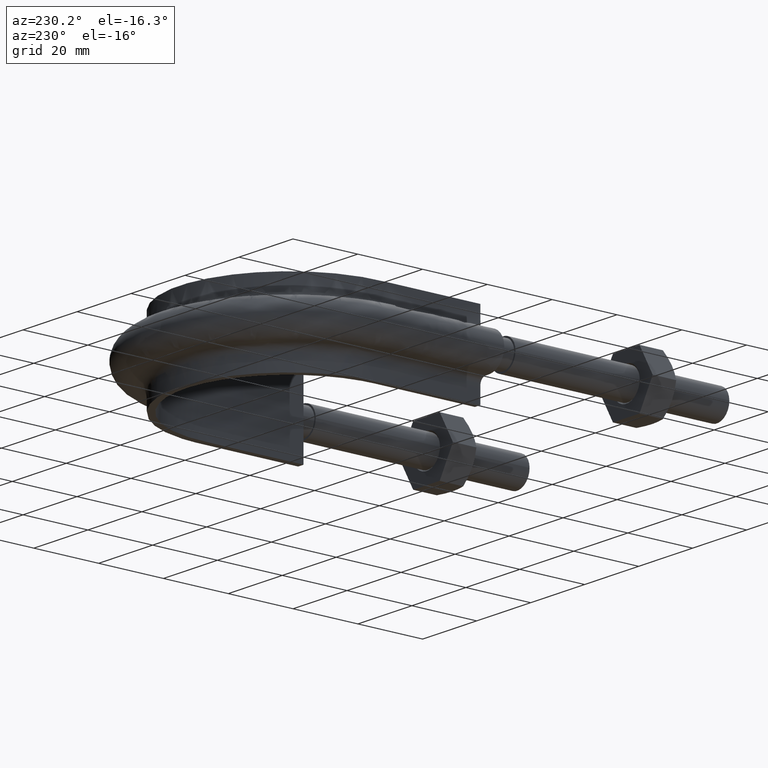
[diagram: clean part render]
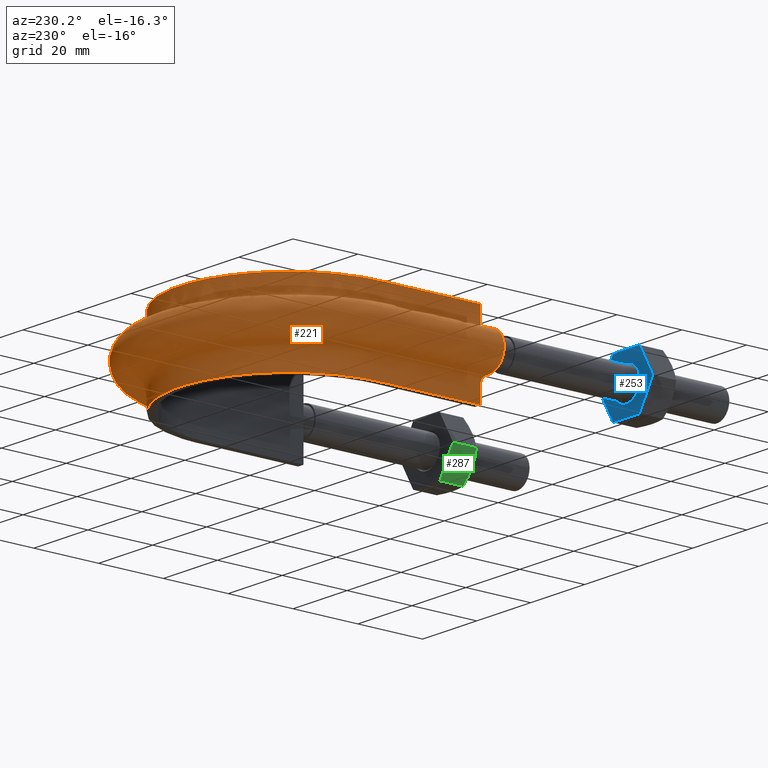
[diagram: same view with three faces highlighted in distinct colors, each labeled with its STEP entity id]
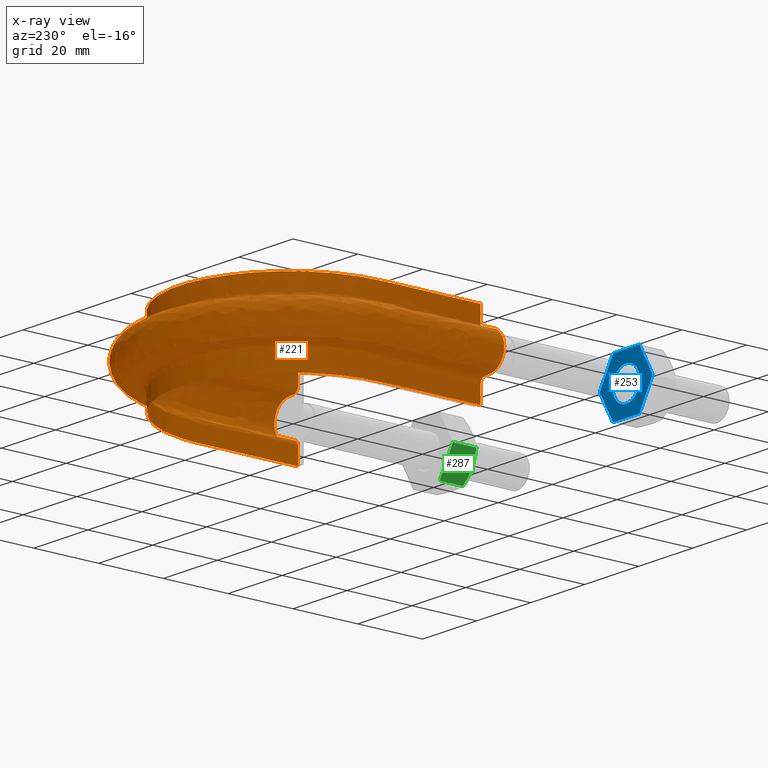
[diagram: x-ray of the same camera — body ghosted, the three highlighted faces saturated]
A machine part, auxiliary view with three faces highlighted in distinct colors.
The next image is the same camera in x-ray (body ghosted, the three faces saturated) — at least one of them is partly hidden behind the body in this view.
Their STEP definitions:

[orange] entity #221 — the highlighted face is a freeform B-spline surface patch.
#221 = ADVANCED_FACE( '', ( #302 ), #303, .F. );
#302 = FACE_OUTER_BOUND( '', #474, .T. );
#303 = B_SPLINE_SURFACE_WITH_KNOTS( '', 3, 3, ( ( #475, #476, #477, #478, #479, #480, #481, #482, #483, #484, #485, #486, #487, #488, #489, #490, #491 ), ( #492, #493, #494, #495, #496, #497, #498, #499, #500, #501, #502, #503, #504, #505, #506, #507, #508 ), ( #509, #510, #511, #512, #513, #514, #515, #516, #517, #518, #519, #520, #521, #522, #523, #524, #525 ), ( #526, #527, #528, #529, #530, #531, #532, #533, #534, #535, #536, #537, #538, #539, #540, #541, #542 ), ( #543, #544, #545, #546, #547, #548, #549, #550, #551, #552, #553, #554, #555, #556, #557, #558, #559 ), ( #560, #561, #562, #563, #564, #565, #566, #567, #568, #569, #570, #571, #572, #573, #574, #575, #576 ), ( #577, #578, #579, #580, #581, #582, #583, #584, #585, #586, #587, #588, #589, #590, #591, #592, #593 ), ( #594, #595, #596, #597, #598, #599, #600, #601, #602, #603, #604, #605, #606, #607, #608, #609, #610 ), ( #611, #612, #613, #614, #615, #616, #617, #618, #619, #620, #621, #622, #623, #624, #625, #626, #627 ), ( #628, #629, #630, #631, #632, #633, #634, #635, #636, #637, #638, #639, #640, #641, #642, #643, #644 ), ( #645, #646, #647, #648, #649, #650, #651, #652, #653, #654, #655, #656, #657, #658, #659, #660, #661 ), ( #662, #663, #664, #665, #666, #667, #668, #669, #670, #671, #672, #673, #674, #675, #676, #677, #678 ), ( #679, #680, #681, #682, #683, #684, #685, #686, #687, #688, #689, #690, #691, #692, #693, #694, #695 ), ( #696, #697, #698, #699, #700, #701, #702, #703, #704, #705, #706, #707, #708, #709, #710, #711, #712 ), ( #713, #714, #715, #716, #717, #718, #719, #720, #721, #722, #723, #724, #725, #726, #727, #728, #729 ), ( #730, #731, #732, #733, #734, #735, #736, #737, #738, #739, #740, #741, #742, #743, #744, #745, #746 ), ( #747, #748, #749, #750, #751, #752, #753, #754, #755, #756, #757, #758, #759, #760, #761, #762, #763 ), ( #764, #765, #766, #767, #768, #769, #770, #771, #772, #773, #774, #775, #776, #777, #778, #779, #780 ), ( #781, #782, #783, #784, #785, #786, #787, #788, #789, #790, #791, #792, #793, #794, #795, #796, #797 ), ( #798, #799, #800, #801, #802, #803, #804, #805, #806, #807, #808, #809, #810, #811, #812, #813, #814 ), ( #815, #816, #817, #818, #819, #820, #821, #822, #823, #824, #825, #826, #827, #828, #829, #830, #831 ), ( #832, #833, #834, #835, #836, #837, #838, #839, #840, #841, #842, #843, #844, #845, #846, #847, #848 ), ( #849, #850, #851, #852, #853, #854, #855, #856, #857, #858, #859, #860, #861, #862, #863, #864, #865 ), ( #866, #867, #868, #869, #870, #871, #872, #873, #874, #875, #876, #877, #878, #879, #880, #881, #882 ), ( #883, #884, #885, #886, #887, #888, #889, #890, #891, #892, #893, #894, #895, #896, #897, #898, #899 ), ( #900, #901, #902, #903, #904, #905, #906, #907, #908, #909, #910, #911, #912, #913, #914, #915, #916 ), ( #917, #918, #919, #920, #921, #922, #923, #924, #925, #926, #927, #928, #929, #930, #931, #932, #933 ), ( #934, #935, #936, #937, #938, #939, #940, #941, #942, #943, #944, #945, #946, #947, #948, #949, #950 ), ( #951, #952, #953, #954, #955, #956, #957, #958, #959, #960, #961, #962, #963, #964, #965, #966, #967 ), ( #968, #969, #970, #971, #972, #973, #974, #975, #976, #977, #978, #979, #980, #981, #982, #983, #984 ), ( #985, #986, #987, #988, #989, #990, #991, #992, #993, #994, #995, #996, #997, #998, #999, #1000, #1001 ) ), .UNSPECIFIED., .F., .F., .F., ( 4, 3, 1, 1, 1, 3, 3, 1, 1, 1, 3, 3, 1, 1, 1, 3, 4 ), ( 4, 3, 1, 1, 1, 1, 1, 1, 1, 3, 4 ), ( 0.105263157894737, 0.157894736842105, 0.210526315789474, 0.263157894736842, 0.315789473684211, 0.368421052631579, 0.421052631578947, 0.473684210526316, 0.526315789473684, 0.578947368421053, 0.631578947368421, 0.684210526315789, 0.736842105263158, 0.789473684210526, 0.842105263157895, 0.894736842105263, 0.947368421052632 ), ( 0.000000000000000, 1.00000000000000, 1.50000000000000, 2.00000000000000, 3.00000000000000, 4.00000000000000, 5.00000000000000, 6.00000000000000, 6.50000000000000, 7.00000000000000, 8.00000000000000 ), .UNSPECIFIED. );
#474 = EDGE_LOOP( '', ( #1481, #1482, #1483, #1484 ) );
#475 = CARTESIAN_POINT( '', ( -33.7500000000000, 68.1500000000000, 12.5000000000000 ) );
#476 = CARTESIAN_POINT( '', ( -33.7500000000000, 79.1833333333333, 12.5000000000000 ) );
#477 = CARTESIAN_POINT( '', ( -33.7500000000000, 90.2166666666667, 12.5000000000000 ) );
#478 = CARTESIAN_POINT( '', ( -33.7500000000000, 101.250000000000, 12.5000000000000 ) );
#479 = CARTESIAN_POINT( '', ( -33.7500000000000, 104.187187866659, 12.5000000000000 ) );
#480 = CARTESIAN_POINT( '', ( -32.9599759745505, 110.084667958219, 12.5000000000000 ) );
#481 = CARTESIAN_POINT( '', ( -28.4402068792077, 121.067380155194, 12.5000000000000 ) );
#482 = CARTESIAN_POINT( '', ( -17.6636188802502, 131.845238812156, 12.5000000000000 ) );
#483 = CARTESIAN_POINT( '', ( 3.40725875661414E-014, 136.577380593922, 12.5000000000000 ) );
#484 = CARTESIAN_POINT( '', ( 17.6636188802502, 131.845238812156, 12.5000000000000 ) );
#485 = CARTESIAN_POINT( '', ( 28.4402068792078, 121.067380155194, 12.5000000000000 ) );
#486 = CARTESIAN_POINT( '', ( 32.9599759745505, 110.084667958219, 12.5000000000000 ) );
#487 = CARTESIAN_POINT( '', ( 33.7500000000000, 104.187187866659, 12.5000000000000 ) );
#488 = CARTESIAN_POINT( '', ( 33.7500000000000, 101.250000000000, 12.5000000000000 ) );
#489 = CARTESIAN_POINT( '', ( 33.7500000000000, 90.2166666666666, 12.5000000000000 ) );
#490 = CARTESIAN_POINT( '', ( 33.7500000000000, 79.1833333333333, 12.5000000000000 ) );
#491 = CARTESIAN_POINT( '', ( 33.7500000000000, 68.1500000000000, 12.5000000000000 ) );
#492 = CARTESIAN_POINT( '', ( -33.7500000000000, 68.1500000000000, 10.8666666666667 ) );
#493 = CARTESIAN_POINT( '', ( -33.7500000000000, 79.1833333333333, 10.8666666666667 ) );
#494 = CARTESIAN_POINT( '', ( -33.7500000000000, 90.2166666666667, 10.8666666666667 ) );
#495 = CARTESIAN_POINT( '', ( -33.7500000000000, 101.250000000000, 10.8666666666667 ) );
#496 = CARTESIAN_POINT( '', ( -33.7500000000000, 104.187187866659, 10.8666666666667 ) );
#497 = CARTESIAN_POINT( '', ( -32.9599759745505, 110.084667958219, 10.8666666666667 ) );
#498 = CARTESIAN_POINT( '', ( -28.4402068792077, 121.067380155194, 10.8666666666667 ) );
#499 = CARTESIAN_POINT( '', ( -17.6636188802502, 131.845238812156, 10.8666666666667 ) );
#500 = CARTESIAN_POINT( '', ( 2.97357788761994E-014, 136.577380593922, 10.8666666666667 ) );
#501 = CARTESIAN_POINT( '', ( 17.6636188802502, 131.845238812156, 10.8666666666667 ) );
#502 = CARTESIAN_POINT( '', ( 28.4402068792078, 121.067380155194, 10.8666666666667 ) );
#503 = CARTESIAN_POINT( '', ( 32.9599759745505, 110.084667958219, 10.8666666666667 ) );
#504 = CARTESIAN_POINT( '', ( 33.7500000000000, 104.187187866659, 10.8666666666667 ) );
#505 = CARTESIAN_POINT( '', ( 33.7500000000000, 101.250000000000, 10.8666666666667 ) );
#506 = CARTESIAN_POINT( '', ( 33.7500000000000, 90.2166666666666, 10.8666666666667 ) );
#507 = CARTESIAN_POINT( '', ( 33.7500000000000, 79.1833333333333, 10.8666666666667 ) );
#508 = CARTESIAN_POINT( '', ( 33.7500000000000, 68.1500000000000, 10.8666666666667 ) );
#509 = CARTESIAN_POINT( '', ( -33.7500000000000, 68.1500000000000, 9.23333333333332 ) );
#510 = CARTESIAN_POINT( '', ( -33.7500000000000, 79.1833333333333, 9.23333333333332 ) );
#511 = CARTESIAN_POINT( '', ( -33.7500000000000, 90.2166666666667, 9.23333333333332 ) );
#512 = CARTESIAN_POINT( '', ( -33.7500000000000, 101.250000000000, 9.23333333333332 ) );
#513 = CARTESIAN_POINT( '', ( -33.7500000000000, 104.187187866659, 9.23333333333332 ) );
#514 = CARTESIAN_POINT( '', ( -32.9599759745505, 110.084667958219, 9.23333333333332 ) );
#515 = CARTESIAN_POINT( '', ( -28.4402068792077, 121.067380155194, 9.23333333333333 ) );
#516 = CARTESIAN_POINT( '', ( -17.6636188802502, 131.845238812156, 9.23333333333332 ) );
#517 = CARTESIAN_POINT( '', ( 2.53989701862574E-014, 136.577380593922, 9.23333333333332 ) );
#518 = CARTESIAN_POINT( '', ( 17.6636188802502, 131.845238812156, 9.23333333333332 ) );
#519 = CARTESIAN_POINT( '', ( 28.4402068792078, 121.067380155194, 9.23333333333333 ) );
#520 = CARTESIAN_POINT( '', ( 32.9599759745505, 110.084667958219, 9.23333333333332 ) );
#521 = CARTESIAN_POINT( '', ( 33.7500000000000, 104.187187866659, 9.23333333333332 ) );
#522 = CARTESIAN_POINT( '', ( 33.7500000000000, 101.250000000000, 9.23333333333332 ) );
#523 = CARTESIAN_POINT( '', ( 33.7500000000000, 90.2166666666667, 9.23333333333332 ) );
#524 = CARTESIAN_POINT( '', ( 33.7500000000000, 79.1833333333333, 9.23333333333332 ) );
#525 = CARTESIAN_POINT( '', ( 33.7500000000000, 68.1500000000000, 9.23333333333332 ) );
#526 = CARTESIAN_POINT( '', ( -33.7500000000000, 68.1500000000000, 7.59999999999998 ) );
#527 = CARTESIAN_POINT( '', ( -33.7500000000000, 79.1833333333333, 7.59999999999998 ) );
#528 = CARTESIAN_POINT( '', ( -33.7500000000000, 90.2166666666667, 7.59999999999998 ) );
#529 = CARTESIAN_POINT( '', ( -33.7500000000000, 101.250000000000, 7.59999999999998 ) );
#530 = CARTESIAN_POINT( '', ( -33.7500000000000, 104.187187866659, 7.59999999999998 ) );
#531 = CARTESIAN_POINT( '', ( -32.9599759745505, 110.084667958219, 7.59999999999998 ) );
#532 = CARTESIAN_POINT( '', ( -28.4402068792077, 121.067380155194, 7.59999999999999 ) );
#533 = CARTESIAN_POINT( '', ( -17.6636188802502, 131.845238812156, 7.59999999999998 ) );
#534 = CARTESIAN_POINT( '', ( 2.36642467102806E-014, 136.577380593922, 7.59999999999999 ) );
#535 = CARTESIAN_POINT( '', ( 17.6636188802502, 131.845238812156, 7.59999999999998 ) );
#536 = CARTESIAN_POINT( '', ( 28.4402068792077, 121.067380155194, 7.59999999999999 ) );
#537 = CARTESIAN_POINT( '', ( 32.9599759745505, 110.084667958219, 7.59999999999998 ) );
#538 = CARTESIAN_POINT( '', ( 33.7500000000000, 104.187187866659, 7.59999999999998 ) );
#539 = CARTESIAN_POINT( '', ( 33.7500000000000, 101.250000000000, 7.59999999999998 ) );
#540 = CARTESIAN_POINT( '', ( 33.7500000000000, 90.2166666666667, 7.59999999999998 ) );
#541 = CARTESIAN_POINT( '', ( 33.7500000000000, 79.1833333333333, 7.59999999999998 ) );
#542 = CARTESIAN_POINT( '', ( 33.7500000000000, 68.1500000000000, 7.59999999999998 ) );
#543 = CARTESIAN_POINT( '', ( -33.7500000000000, 68.1500000000000, 7.33823584172332 ) );
#544 = CARTESIAN_POINT( '', ( -33.7500000000000, 79.1833333333333, 7.33823584172332 ) );
#545 = CARTESIAN_POINT( '', ( -33.7500000000000, 90.2166666666667, 7.33823584172332 ) );
#546 = CARTESIAN_POINT( '', ( -33.7500000000000, 101.250000000000, 7.33823584172332 ) );
#547 = CARTESIAN_POINT( '', ( -33.7500000000000, 104.187187866659, 7.33823584172332 ) );
#548 = CARTESIAN_POINT( '', ( -32.9599759745505, 110.084667958219, 7.33823584172331 ) );
#549 = CARTESIAN_POINT( '', ( -28.4402068792077, 121.067380155194, 7.33823584172332 ) );
#550 = CARTESIAN_POINT( '', ( -17.6636188802502, 131.845238812156, 7.33823584172331 ) );
#551 = CARTESIAN_POINT( '', ( 2.45316084482690E-014, 136.577380593922, 7.33823584172332 ) );
#552 = CARTESIAN_POINT( '', ( 17.6636188802502, 131.845238812156, 7.33823584172331 ) );
#553 = CARTESIAN_POINT( '', ( 28.4402068792077, 121.067380155194, 7.33823584172332 ) );
#554 = CARTESIAN_POINT( '', ( 32.9599759745505, 110.084667958219, 7.33823584172331 ) );
#555 = CARTESIAN_POINT( '', ( 33.7500000000000, 104.187187866659, 7.33823584172332 ) );
#556 = CARTESIAN_POINT( '', ( 33.7500000000000, 101.250000000000, 7.33823584172332 ) );
#557 = CARTESIAN_POINT( '', ( 33.7500000000000, 90.2166666666667, 7.33823584172332 ) );
#558 = CARTESIAN_POINT( '', ( 33.7500000000000, 79.1833333333333, 7.33823584172332 ) );
#559 = CARTESIAN_POINT( '', ( 33.7500000000000, 68.1500000000000, 7.33823584172332 ) );
#560 = CARTESIAN_POINT( '', ( -33.8541362568359, 68.1500000000000, 6.81470752516999 ) );
#561 = CARTESIAN_POINT( '', ( -33.8541362568359, 79.1833333333333, 6.81470752516999 ) );
#562 = CARTESIAN_POINT( '', ( -33.8541362568359, 90.2166666666667, 6.81470752516999 ) );
#563 = CARTESIAN_POINT( '', ( -33.8541362568359, 101.250000000000, 6.81470752516999 ) );
#564 = CARTESIAN_POINT( '', ( -33.8541362568359, 104.196488941967, 6.81470752516999 ) );
#565 = CARTESIAN_POINT( '', ( -33.0617163629081, 110.111830876023, 6.81470752516999 ) );
#566 = CARTESIAN_POINT( '', ( -28.5279356231946, 121.128582987999, 6.81470752517000 ) );
#567 = CARTESIAN_POINT( '', ( -17.7181279007037, 131.939620654165, 6.81470752516999 ) );
#568 = CARTESIAN_POINT( '', ( 2.36775965683778E-014, 136.686394058171, 6.81470752516999 ) );
#569 = CARTESIAN_POINT( '', ( 17.7181279007038, 131.939620654165, 6.81470752516999 ) );
#570 = CARTESIAN_POINT( '', ( 28.5279356231946, 121.128582987999, 6.81470752517000 ) );
#571 = CARTESIAN_POINT( '', ( 33.0617163629082, 110.111830876023, 6.81470752516999 ) );
#572 = CARTESIAN_POINT( '', ( 33.8541362568360, 104.196488941967, 6.81470752516999 ) );
#573 = CARTESIAN_POINT( '', ( 33.8541362568360, 101.250000000000, 6.81470752516999 ) );
#574 = CARTESIAN_POINT( '', ( 33.8541362568360, 90.2166666666667, 6.81470752516999 ) );
#575 = CARTESIAN_POINT( '', ( 33.8541362568359, 79.1833333333333, 6.81470752516999 ) );
#576 = CARTESIAN_POINT( '', ( 33.8541362568359, 68.1500000000000, 6.81470752516999 ) );
#577 = CARTESIAN_POINT( '', ( -34.2989687109389, 68.1500000000000, 6.14896871093886 ) );
#578 = CARTESIAN_POINT( '', ( -34.2989687109389, 79.1833333333333, 6.14896871093886 ) );
#579 = CARTESIAN_POINT( '', ( -34.2989687109389, 90.2166666666667, 6.14896871093886 ) );
#580 = CARTESIAN_POINT( '', ( -34.2989687109389, 101.250000000000, 6.14896871093886 ) );
#581 = CARTESIAN_POINT( '', ( -34.2989687109389, 104.236219774248, 6.14896871093886 ) );
#582 = CARTESIAN_POINT( '', ( -33.4963145327448, 110.227861044136, 6.14896871093886 ) );
#583 = CARTESIAN_POINT( '', ( -28.9026811121221, 121.390019370885, 6.14896871093886 ) );
#584 = CARTESIAN_POINT( '', ( -17.9509707363869, 132.342785773398, 6.14896871093886 ) );
#585 = CARTESIAN_POINT( '', ( 2.37346223374973E-014, 137.152060179709, 6.14896871093886 ) );
#586 = CARTESIAN_POINT( '', ( 17.9509707363869, 132.342785773398, 6.14896871093885 ) );
#587 = CARTESIAN_POINT( '', ( 28.9026811121221, 121.390019370885, 6.14896871093886 ) );
#588 = CARTESIAN_POINT( '', ( 33.4963145327449, 110.227861044136, 6.14896871093885 ) );
#589 = CARTESIAN_POINT( '', ( 34.2989687109389, 104.236219774248, 6.14896871093886 ) );
#590 = CARTESIAN_POINT( '', ( 34.2989687109389, 101.250000000000, 6.14896871093886 ) );
#591 = CARTESIAN_POINT( '', ( 34.2989687109389, 90.2166666666667, 6.14896871093886 ) );
#592 = CARTESIAN_POINT( '', ( 34.2989687109389, 79.1833333333333, 6.14896871093886 ) );
#593 = CARTESIAN_POINT( '', ( 34.2989687109389, 68.1500000000000, 6.14896871093886 ) );
#594 = CARTESIAN_POINT( '', ( -34.9647075251700, 68.1500000000000, 5.70413625683589 ) );
#595 = CARTESIAN_POINT( '', ( -34.9647075251700, 79.1833333333333, 5.70413625683589 ) );
#596 = CARTESIAN_POINT( '', ( -34.9647075251700, 90.2166666666667, 5.70413625683589 ) );
#597 = CARTESIAN_POINT( '', ( -34.9647075251700, 101.250000000000, 5.70413625683589 ) );
#598 = CARTESIAN_POINT( '', ( -34.9647075251700, 104.295681166796, 5.70413625683589 ) );
#599 = CARTESIAN_POINT( '', ( -34.1467366581662, 110.401512462376, 5.70413625683589 ) );
#600 = CARTESIAN_POINT( '', ( -29.4635273703839, 121.781286568083, 5.70413625683589 ) );
#601 = CARTESIAN_POINT( '', ( -18.2994446660656, 132.946165014147, 5.70413625683589 ) );
#602 = CARTESIAN_POINT( '', ( 2.46873291701705E-014, 137.848978780681, 5.70413625683589 ) );
#603 = CARTESIAN_POINT( '', ( 18.2994446660656, 132.946165014147, 5.70413625683589 ) );
#604 = CARTESIAN_POINT( '', ( 29.4635273703840, 121.781286568083, 5.70413625683589 ) );
#605 = CARTESIAN_POINT( '', ( 34.1467366581663, 110.401512462376, 5.70413625683589 ) );
#606 = CARTESIAN_POINT( '', ( 34.9647075251700, 104.295681166796, 5.70413625683589 ) );
#607 = CARTESIAN_POINT( '', ( 34.9647075251700, 101.250000000000, 5.70413625683589 ) );
#608 = CARTESIAN_POINT( '', ( 34.9647075251700, 90.2166666666667, 5.70413625683589 ) );
#609 = CARTESIAN_POINT( '', ( 34.9647075251700, 79.1833333333333, 5.70413625683589 ) );
#610 = CARTESIAN_POINT( '', ( 34.9647075251700, 68.1500000000000, 5.70413625683589 ) );
#611 = CARTESIAN_POINT( '', ( -35.4882358417233, 68.1500000000000, 5.59999999999998 ) );
#612 = CARTESIAN_POINT( '', ( -35.4882358417233, 79.1833333333333, 5.59999999999998 ) );
#613 = CARTESIAN_POINT( '', ( -35.4882358417233, 90.2166666666667, 5.59999999999998 ) );
#614 = CARTESIAN_POINT( '', ( -35.4882358417233, 101.250000000000, 5.59999999999998 ) );
#615 = CARTESIAN_POINT( '', ( -35.4882358417233, 104.342440830007, 5.59999999999998 ) );
#616 = CARTESIAN_POINT( '', ( -34.6582201305010, 110.538069671773, 5.59999999999998 ) );
#617 = CARTESIAN_POINT( '', ( -29.9045695496238, 122.088973986471, 5.59999999999999 ) );
#618 = CARTESIAN_POINT( '', ( -18.5734800172688, 133.420654575820, 5.59999999999998 ) );
#619 = CARTESIAN_POINT( '', ( 2.73565286529619E-014, 138.397026474675, 5.59999999999998 ) );
#620 = CARTESIAN_POINT( '', ( 18.5734800172688, 133.420654575820, 5.59999999999998 ) );
#621 = CARTESIAN_POINT( '', ( 29.9045695496238, 122.088973986471, 5.59999999999999 ) );
#622 = CARTESIAN_POINT( '', ( 34.6582201305010, 110.538069671773, 5.59999999999998 ) );
#623 = CARTESIAN_POINT( '', ( 35.4882358417234, 104.342440830007, 5.59999999999998 ) );
#624 = CARTESIAN_POINT( '', ( 35.4882358417234, 101.250000000000, 5.59999999999998 ) );
#625 = CARTESIAN_POINT( '', ( 35.4882358417234, 90.2166666666667, 5.59999999999998 ) );
#626 = CARTESIAN_POINT( '', ( 35.4882358417234, 79.1833333333333, 5.59999999999998 ) );
#627 = CARTESIAN_POINT( '', ( 35.4882358417234, 68.1500000000000, 5.59999999999998 ) );
#628 = CARTESIAN_POINT( '', ( -35.7500000000000, 68.1500000000000, 5.59999999999998 ) );
#629 = CARTESIAN_POINT( '', ( -35.7500000000000, 79.1833333333333, 5.59999999999998 ) );
#630 = CARTESIAN_POINT( '', ( -35.7500000000000, 90.2166666666667, 5.59999999999998 ) );
#631 = CARTESIAN_POINT( '', ( -35.7500000000000, 101.250000000000, 5.59999999999998 ) );
#632 = CARTESIAN_POINT( '', ( -35.7500000000000, 104.365820661613, 5.59999999999998 ) );
#633 = CARTESIAN_POINT( '', ( -34.9139618666683, 110.606348276471, 5.59999999999998 ) );
#634 = CARTESIAN_POINT( '', ( -30.1250906392437, 122.242817695665, 5.59999999999999 ) );
#635 = CARTESIAN_POINT( '', ( -18.7104976928704, 133.657899356656, 5.59999999999998 ) );
#636 = CARTESIAN_POINT( '', ( 2.47880005734099E-014, 138.671050321672, 5.59999999999998 ) );
#637 = CARTESIAN_POINT( '', ( 18.7104976928704, 133.657899356656, 5.59999999999998 ) );
#638 = CARTESIAN_POINT( '', ( 30.1250906392437, 122.242817695665, 5.59999999999999 ) );
#639 = CARTESIAN_POINT( '', ( 34.9139618666684, 110.606348276471, 5.59999999999998 ) );
#640 = CARTESIAN_POINT( '', ( 35.7500000000000, 104.365820661613, 5.59999999999998 ) );
#641 = CARTESIAN_POINT( '', ( 35.7500000000000, 101.250000000000, 5.59999999999998 ) );
#642 = CARTESIAN_POINT( '', ( 35.7500000000000, 90.2166666666667, 5.59999999999998 ) );
#643 = CARTESIAN_POINT( '', ( 35.7500000000000, 79.1833333333333, 5.59999999999998 ) );
#644 = CARTESIAN_POINT( '', ( 35.7500000000000, 68.1500000000000, 5.59999999999998 ) );
#645 = CARTESIAN_POINT( '', ( -36.1666666666667, 68.1500000000000, 5.60000000000000 ) );
#646 = CARTESIAN_POINT( '', ( -36.1666666666667, 79.1833333333333, 5.60000000000000 ) );
#647 = CARTESIAN_POINT( '', ( -36.1666666666667, 90.2166666666667, 5.60000000000000 ) );
#648 = CARTESIAN_POINT( '', ( -36.1666666666667, 101.250000000000, 5.60000000000000 ) );
#649 = CARTESIAN_POINT( '', ( -36.1666666666667, 104.403035827229, 5.60000000000000 ) );
#650 = CARTESIAN_POINT( '', ( -35.3210422608595, 110.715031676107, 5.60000000000000 ) );
#651 = CARTESIAN_POINT( '', ( -30.4761080892512, 122.487700516597, 5.60000000000000 ) );
#652 = CARTESIAN_POINT( '', ( -18.9285974454996, 134.035536970093, 5.60000000000000 ) );
#653 = CARTESIAN_POINT( '', ( 2.57087773374693E-014, 139.107231514953, 5.60000000000000 ) );
#654 = CARTESIAN_POINT( '', ( 18.9285974454996, 134.035536970093, 5.60000000000000 ) );
#655 = CARTESIAN_POINT( '', ( 30.4761080892512, 122.487700516597, 5.60000000000000 ) );
#656 = CARTESIAN_POINT( '', ( 35.3210422608596, 110.715031676107, 5.59999999999999 ) );
#657 = CARTESIAN_POINT( '', ( 36.1666666666667, 104.403035827229, 5.60000000000000 ) );
#658 = CARTESIAN_POINT( '', ( 36.1666666666667, 101.250000000000, 5.60000000000000 ) );
#659 = CARTESIAN_POINT( '', ( 36.1666666666667, 90.2166666666667, 5.60000000000000 ) );
#660 = CARTESIAN_POINT( '', ( 36.1666666666667, 79.1833333333333, 5.60000000000000 ) );
#661 = CARTESIAN_POINT( '', ( 36.1666666666667, 68.1500000000000, 5.60000000000000 ) );
#662 = CARTESIAN_POINT( '', ( -36.5833333333333, 68.1500000000000, 5.60000000000000 ) );
#663 = CARTESIAN_POINT( '', ( -36.5833333333333, 79.1833333333333, 5.60000000000000 ) );
#664 = CARTESIAN_POINT( '', ( -36.5833333333333, 90.2166666666667, 5.60000000000000 ) );
#665 = CARTESIAN_POINT( '', ( -36.5833333333333, 101.250000000000, 5.60000000000000 ) );
#666 = CARTESIAN_POINT( '', ( -36.5833333333333, 104.440250992844, 5.60000000000000 ) );
#667 = CARTESIAN_POINT( '', ( -35.7281226550507, 110.823715075743, 5.60000000000000 ) );
#668 = CARTESIAN_POINT( '', ( -30.8271255392587, 122.732583337528, 5.60000000000000 ) );
#669 = CARTESIAN_POINT( '', ( -19.1466971981288, 134.413174583530, 5.60000000000000 ) );
#670 = CARTESIAN_POINT( '', ( 2.48948306255519E-014, 139.543412708235, 5.60000000000000 ) );
#671 = CARTESIAN_POINT( '', ( 19.1466971981289, 134.413174583530, 5.60000000000000 ) );
#672 = CARTESIAN_POINT( '', ( 30.8271255392587, 122.732583337528, 5.60000000000000 ) );
#673 = CARTESIAN_POINT( '', ( 35.7281226550508, 110.823715075743, 5.59999999999999 ) );
#674 = CARTESIAN_POINT( '', ( 36.5833333333334, 104.440250992844, 5.60000000000000 ) );
#675 = CARTESIAN_POINT( '', ( 36.5833333333334, 101.250000000000, 5.60000000000000 ) );
#676 = CARTESIAN_POINT( '', ( 36.5833333333334, 90.2166666666667, 5.60000000000000 ) );
#677 = CARTESIAN_POINT( '', ( 36.5833333333334, 79.1833333333333, 5.60000000000000 ) );
#678 = CARTESIAN_POINT( '', ( 36.5833333333334, 68.1500000000000, 5.60000000000000 ) );
#679 = CARTESIAN_POINT( '', ( -37.0000000000000, 68.1500000000000, 5.60000000000000 ) );
#680 = CARTESIAN_POINT( '', ( -37.0000000000000, 79.1833333333333, 5.60000000000000 ) );
#681 = CARTESIAN_POINT( '', ( -37.0000000000000, 90.2166666666667, 5.60000000000000 ) );
#682 = CARTESIAN_POINT( '', ( -37.0000000000000, 101.250000000000, 5.60000000000000 ) );
#683 = CARTESIAN_POINT( '', ( -37.0000000000000, 104.477466158460, 5.60000000000000 ) );
#684 = CARTESIAN_POINT( '', ( -36.1352030492419, 110.932398475379, 5.60000000000000 ) );
#685 = CARTESIAN_POINT( '', ( -31.1781429892662, 122.977466158460, 5.60000000000000 ) );
#686 = CARTESIAN_POINT( '', ( -19.3647969507580, 134.790812196968, 5.60000000000000 ) );
#687 = CARTESIAN_POINT( '', ( 2.23461604376577E-014, 139.979593901516, 5.60000000000000 ) );
#688 = CARTESIAN_POINT( '', ( 19.3647969507581, 134.790812196968, 5.60000000000000 ) );
#689 = CARTESIAN_POINT( '', ( 31.1781429892662, 122.977466158460, 5.60000000000000 ) );
#690 = CARTESIAN_POINT( '', ( 36.1352030492420, 110.932398475379, 5.59999999999999 ) );
#691 = CARTESIAN_POINT( '', ( 37.0000000000000, 104.477466158460, 5.60000000000000 ) );
#692 = CARTESIAN_POINT( '', ( 37.0000000000000, 101.250000000000, 5.60000000000000 ) );
#693 = CARTESIAN_POINT( '', ( 37.0000000000000, 90.2166666666667, 5.60000000000000 ) );
#694 = CARTESIAN_POINT( '', ( 37.0000000000000, 79.1833333333333, 5.60000000000000 ) );
#695 = CARTESIAN_POINT( '', ( 37.0000000000000, 68.1500000000000, 5.60000000000000 ) );
#696 = CARTESIAN_POINT( '', ( -38.4627416997969, 68.1500000000000, 5.60000000000000 ) );
#697 = CARTESIAN_POINT( '', ( -38.4627416997969, 79.1833333333333, 5.60000000000000 ) );
#698 = CARTESIAN_POINT( '', ( -38.4627416997969, 90.2166666666667, 5.60000000000000 ) );
#699 = CARTESIAN_POINT( '', ( -38.4627416997969, 101.250000000000, 5.60000000000000 ) );
#700 = CARTESIAN_POINT( '', ( -38.4627416997969, 104.608112977525, 5.60000000000000 ) );
#701 = CARTESIAN_POINT( '', ( -37.5642913718498, 111.313940253114, 5.59999999999999 ) );
#702 = CARTESIAN_POINT( '', ( -32.4104178568238, 123.837146911437, 5.60000000000000 ) );
#703 = CARTESIAN_POINT( '', ( -20.1304535976848, 136.116539279976, 5.59999999999999 ) );
#704 = CARTESIAN_POINT( '', ( 2.34010399021176E-014, 141.510842909708, 5.60000000000000 ) );
#705 = CARTESIAN_POINT( '', ( 20.1304535976848, 136.116539279976, 5.59999999999999 ) );
#706 = CARTESIAN_POINT( '', ( 32.4104178568238, 123.837146911437, 5.60000000000000 ) );
#707 = CARTESIAN_POINT( '', ( 37.5642913718498, 111.313940253114, 5.59999999999999 ) );
#708 = CARTESIAN_POINT( '', ( 38.4627416997970, 104.608112977525, 5.60000000000000 ) );
#709 = CARTESIAN_POINT( '', ( 38.4627416997970, 101.250000000000, 5.60000000000000 ) );
#710 = CARTESIAN_POINT( '', ( 38.4627416997970, 90.2166666666667, 5.60000000000000 ) );
#711 = CARTESIAN_POINT( '', ( 38.4627416997970, 79.1833333333333, 5.60000000000000 ) );
#712 = CARTESIAN_POINT( '', ( 38.4627416997970, 68.1500000000000, 5.60000000000000 ) );
#713 = CARTESIAN_POINT( '', ( -41.3882250993908, 68.1500000000000, 4.38822509939085 ) );
#714 = CARTESIAN_POINT( '', ( -41.3882250993908, 79.1833333333333, 4.38822509939085 ) );
#715 = CARTESIAN_POINT( '', ( -41.3882250993908, 90.2166666666667, 4.38822509939085 ) );
#716 = CARTESIAN_POINT( '', ( -41.3882250993908, 101.250000000000, 4.38822509939085 ) );
#717 = CARTESIAN_POINT( '', ( -41.3882250993908, 104.869406615656, 4.38822509939085 ) );
#718 = CARTESIAN_POINT( '', ( -40.4224680170654, 112.077023808585, 4.38822509939085 ) );
#719 = CARTESIAN_POINT( '', ( -34.8749675919391, 125.556508417390, 4.38822509939085 ) );
#720 = CARTESIAN_POINT( '', ( -21.6617668915383, 138.767993445992, 4.38822509939085 ) );
#721 = CARTESIAN_POINT( '', ( 2.37760753550607E-014, 144.573340926090, 4.38822509939085 ) );
#722 = CARTESIAN_POINT( '', ( 21.6617668915383, 138.767993445992, 4.38822509939085 ) );
#723 = CARTESIAN_POINT( '', ( 34.8749675919392, 125.556508417390, 4.38822509939085 ) );
#724 = CARTESIAN_POINT( '', ( 40.4224680170655, 112.077023808585, 4.38822509939085 ) );
#725 = CARTESIAN_POINT( '', ( 41.3882250993909, 104.869406615656, 4.38822509939085 ) );
#726 = CARTESIAN_POINT( '', ( 41.3882250993909, 101.250000000000, 4.38822509939085 ) );
#727 = CARTESIAN_POINT( '', ( 41.3882250993909, 90.2166666666667, 4.38822509939085 ) );
#728 = CARTESIAN_POINT( '', ( 41.3882250993909, 79.1833333333333, 4.38822509939085 ) );
#729 = CARTESIAN_POINT( '', ( 41.3882250993909, 68.1500000000000, 4.38822509939085 ) );
#730 = CARTESIAN_POINT( '', ( -43.2058874503046, 68.1500000000000, -1.07693261045861E-015 ) );
#731 = CARTESIAN_POINT( '', ( -43.2058874503046, 79.1833333333333, -1.07693261045861E-015 ) );
#732 = CARTESIAN_POINT( '', ( -43.2058874503046, 90.2166666666667, -1.07693261045861E-015 ) );
#733 = CARTESIAN_POINT( '', ( -43.2058874503046, 101.250000000000, -1.07693261045861E-015 ) );
#734 = CARTESIAN_POINT( '', ( -43.2058874503046, 105.031753668669, -1.07693261045861E-015 ) );
#735 = CARTESIAN_POINT( '', ( -42.1983113122250, 112.551143145435, -1.07693261045861E-015 ) );
#736 = CARTESIAN_POINT( '', ( -36.4062424800808, 126.624782698973, -1.07693261045861E-015 ) );
#737 = CARTESIAN_POINT( '', ( -22.6132029933728, 140.415395859353, -1.07693261045861E-015 ) );
#738 = CARTESIAN_POINT( '', ( 2.57438159875072E-014, 146.476133245780, -1.07693261045861E-015 ) );
#739 = CARTESIAN_POINT( '', ( 22.6132029933728, 140.415395859353, -1.07693261045861E-015 ) );
#740 = CARTESIAN_POINT( '', ( 36.4062424800808, 126.624782698973, -1.07693261045861E-015 ) );
#741 = CARTESIAN_POINT( '', ( 42.1983113122251, 112.551143145435, -1.07693261045861E-015 ) );
#742 = CARTESIAN_POINT( '', ( 43.2058874503046, 105.031753668669, -1.07693261045861E-015 ) );
#743 = CARTESIAN_POINT( '', ( 43.2058874503046, 101.250000000000, -1.07693261045861E-015 ) );
#744 = CARTESIAN_POINT( '', ( 43.2058874503046, 90.2166666666667, -1.07693261045861E-015 ) );
#745 = CARTESIAN_POINT( '', ( 43.2058874503046, 79.1833333333333, -1.07693261045861E-015 ) );
#746 = CARTESIAN_POINT( '', ( 43.2058874503046, 68.1500000000000, -1.07693261045861E-015 ) );
#747 = CARTESIAN_POINT( '', ( -41.3882250993908, 68.1500000000000, -4.38822509939086 ) );
#748 = CARTESIAN_POINT( '', ( -41.3882250993908, 79.1833333333333, -4.38822509939086 ) );
#749 = CARTESIAN_POINT( '', ( -41.3882250993908, 90.2166666666667, -4.38822509939086 ) );
#750 = CARTESIAN_POINT( '', ( -41.3882250993908, 101.250000000000, -4.38822509939086 ) );
#751 = CARTESIAN_POINT( '', ( -41.3882250993908, 104.869406615656, -4.38822509939086 ) );
#752 = CARTESIAN_POINT( '', ( -40.4224680170654, 112.077023808585, -4.38822509939086 ) );
#753 = CARTESIAN_POINT( '', ( -34.8749675919391, 125.556508417390, -4.38822509939086 ) );
#754 = CARTESIAN_POINT( '', ( -21.6617668915383, 138.767993445992, -4.38822509939086 ) );
#755 = CARTESIAN_POINT( '', ( 2.37760753550607E-014, 144.573340926090, -4.38822509939086 ) );
#756 = CARTESIAN_POINT( '', ( 21.6617668915383, 138.767993445992, -4.38822509939086 ) );
#757 = CARTESIAN_POINT( '', ( 34.8749675919392, 125.556508417390, -4.38822509939086 ) );
#758 = CARTESIAN_POINT( '', ( 40.4224680170655, 112.077023808585, -4.38822509939086 ) );
#759 = CARTESIAN_POINT( '', ( 41.3882250993909, 104.869406615656, -4.38822509939086 ) );
#760 = CARTESIAN_POINT( '', ( 41.3882250993909, 101.250000000000, -4.38822509939086 ) );
#761 = CARTESIAN_POINT( '', ( 41.3882250993909, 90.2166666666667, -4.38822509939086 ) );
#762 = CARTESIAN_POINT( '', ( 41.3882250993909, 79.1833333333333, -4.38822509939086 ) );
#763 = CARTESIAN_POINT( '', ( 41.3882250993909, 68.1500000000000, -4.38822509939086 ) );
#764 = CARTESIAN_POINT( '', ( -38.4627416997969, 68.1500000000000, -5.60000000000000 ) );
#765 = CARTESIAN_POINT( '', ( -38.4627416997969, 79.1833333333333, -5.60000000000000 ) );
#766 = CARTESIAN_POINT( '', ( -38.4627416997969, 90.2166666666667, -5.60000000000000 ) );
#767 = CARTESIAN_POINT( '', ( -38.4627416997969, 101.250000000000, -5.60000000000000 ) );
#768 = CARTESIAN_POINT( '', ( -38.4627416997969, 104.608112977525, -5.60000000000000 ) );
#769 = CARTESIAN_POINT( '', ( -37.5642913718498, 111.313940253114, -5.60000000000000 ) );
#770 = CARTESIAN_POINT( '', ( -32.4104178568238, 123.837146911437, -5.60000000000001 ) );
#771 = CARTESIAN_POINT( '', ( -20.1304535976848, 136.116539279976, -5.60000000000000 ) );
#772 = CARTESIAN_POINT( '', ( 2.34010399021176E-014, 141.510842909708, -5.60000000000000 ) );
#773 = CARTESIAN_POINT( '', ( 20.1304535976848, 136.116539279976, -5.60000000000000 ) );
#774 = CARTESIAN_POINT( '', ( 32.4104178568238, 123.837146911437, -5.60000000000001 ) );
#775 = CARTESIAN_POINT( '', ( 37.5642913718498, 111.313940253114, -5.60000000000000 ) );
#776 = CARTESIAN_POINT( '', ( 38.4627416997970, 104.608112977525, -5.60000000000000 ) );
#777 = CARTESIAN_POINT( '', ( 38.4627416997970, 101.250000000000, -5.60000000000000 ) );
#778 = CARTESIAN_POINT( '', ( 38.4627416997970, 90.2166666666667, -5.60000000000000 ) );
#779 = CARTESIAN_POINT( '', ( 38.4627416997970, 79.1833333333333, -5.60000000000000 ) );
#780 = CARTESIAN_POINT( '', ( 38.4627416997970, 68.1500000000000, -5.60000000000000 ) );
#781 = CARTESIAN_POINT( '', ( -37.0000000000000, 68.1500000000000, -5.60000000000000 ) );
#782 = CARTESIAN_POINT( '', ( -37.0000000000000, 79.1833333333333, -5.60000000000000 ) );
#783 = CARTESIAN_POINT( '', ( -37.0000000000000, 90.2166666666667, -5.60000000000000 ) );
#784 = CARTESIAN_POINT( '', ( -37.0000000000000, 101.250000000000, -5.60000000000000 ) );
#785 = CARTESIAN_POINT( '', ( -37.0000000000000, 104.477466158460, -5.60000000000000 ) );
#786 = CARTESIAN_POINT( '', ( -36.1352030492419, 110.932398475379, -5.60000000000000 ) );
#787 = CARTESIAN_POINT( '', ( -31.1781429892662, 122.977466158460, -5.60000000000001 ) );
#788 = CARTESIAN_POINT( '', ( -19.3647969507580, 134.790812196968, -5.60000000000000 ) );
#789 = CARTESIAN_POINT( '', ( 2.49482456516229E-014, 139.979593901516, -5.60000000000000 ) );
#790 = CARTESIAN_POINT( '', ( 19.3647969507581, 134.790812196968, -5.60000000000000 ) );
#791 = CARTESIAN_POINT( '', ( 31.1781429892662, 122.977466158460, -5.60000000000001 ) );
#792 = CARTESIAN_POINT( '', ( 36.1352030492420, 110.932398475379, -5.60000000000000 ) );
#793 = CARTESIAN_POINT( '', ( 37.0000000000000, 104.477466158460, -5.60000000000000 ) );
#794 = CARTESIAN_POINT( '', ( 37.0000000000000, 101.250000000000, -5.60000000000000 ) );
#795 = CARTESIAN_POINT( '', ( 37.0000000000000, 90.2166666666667, -5.60000000000000 ) );
#796 = CARTESIAN_POINT( '', ( 37.0000000000000, 79.1833333333333, -5.60000000000000 ) );
#797 = CARTESIAN_POINT( '', ( 37.0000000000000, 68.1500000000000, -5.60000000000000 ) );
#798 = CARTESIAN_POINT( '', ( -36.5833333333333, 68.1500000000000, -5.60000000000000 ) );
#799 = CARTESIAN_POINT( '', ( -36.5833333333333, 79.1833333333333, -5.60000000000000 ) );
#800 = CARTESIAN_POINT( '', ( -36.5833333333333, 90.2166666666667, -5.60000000000000 ) );
#801 = CARTESIAN_POINT( '', ( -36.5833333333333, 101.250000000000, -5.60000000000000 ) );
#802 = CARTESIAN_POINT( '', ( -36.5833333333333, 104.440250992844, -5.60000000000000 ) );
#803 = CARTESIAN_POINT( '', ( -35.7281226550507, 110.823715075743, -5.60000000000000 ) );
#804 = CARTESIAN_POINT( '', ( -30.8271255392587, 122.732583337528, -5.60000000000001 ) );
#805 = CARTESIAN_POINT( '', ( -19.1466971981288, 134.413174583530, -5.60000000000000 ) );
#806 = CARTESIAN_POINT( '', ( 2.48948306255519E-014, 139.543412708235, -5.60000000000000 ) );
#807 = CARTESIAN_POINT( '', ( 19.1466971981289, 134.413174583530, -5.60000000000000 ) );
#808 = CARTESIAN_POINT( '', ( 30.8271255392587, 122.732583337528, -5.60000000000001 ) );
#809 = CARTESIAN_POINT( '', ( 35.7281226550508, 110.823715075743, -5.60000000000000 ) );
#810 = CARTESIAN_POINT( '', ( 36.5833333333334, 104.440250992844, -5.60000000000000 ) );
#811 = CARTESIAN_POINT( '', ( 36.5833333333334, 101.250000000000, -5.60000000000000 ) );
#812 = CARTESIAN_POINT( '', ( 36.5833333333334, 90.2166666666667, -5.60000000000000 ) );
#813 = CARTESIAN_POINT( '', ( 36.5833333333334, 79.1833333333333, -5.60000000000000 ) );
#814 = CARTESIAN_POINT( '', ( 36.5833333333334, 68.1500000000000, -5.60000000000000 ) );
#815 = CARTESIAN_POINT( '', ( -36.1666666666667, 68.1500000000000, -5.60000000000000 ) );
#816 = CARTESIAN_POINT( '', ( -36.1666666666667, 79.1833333333333, -5.60000000000000 ) );
#817 = CARTESIAN_POINT( '', ( -36.1666666666667, 90.2166666666667, -5.60000000000000 ) );
#818 = CARTESIAN_POINT( '', ( -36.1666666666667, 101.250000000000, -5.60000000000000 ) );
#819 = CARTESIAN_POINT( '', ( -36.1666666666667, 104.403035827229, -5.60000000000000 ) );
#820 = CARTESIAN_POINT( '', ( -35.3210422608595, 110.715031676107, -5.60000000000000 ) );
#821 = CARTESIAN_POINT( '', ( -30.4761080892512, 122.487700516597, -5.60000000000001 ) );
#822 = CARTESIAN_POINT( '', ( -18.9285974454996, 134.035536970093, -5.60000000000000 ) );
#823 = CARTESIAN_POINT( '', ( 2.39740538614925E-014, 139.107231514954, -5.60000000000000 ) );
#824 = CARTESIAN_POINT( '', ( 18.9285974454997, 134.035536970093, -5.60000000000000 ) );
#825 = CARTESIAN_POINT( '', ( 30.4761080892512, 122.487700516597, -5.60000000000001 ) );
#826 = CARTESIAN_POINT( '', ( 35.3210422608596, 110.715031676107, -5.60000000000000 ) );
#827 = CARTESIAN_POINT( '', ( 36.1666666666667, 104.403035827229, -5.60000000000000 ) );
#828 = CARTESIAN_POINT( '', ( 36.1666666666667, 101.250000000000, -5.60000000000000 ) );
#829 = CARTESIAN_POINT( '', ( 36.1666666666667, 90.2166666666667, -5.60000000000000 ) );
#830 = CARTESIAN_POINT( '', ( 36.1666666666667, 79.1833333333333, -5.60000000000000 ) );
#831 = CARTESIAN_POINT( '', ( 36.1666666666667, 68.1500000000000, -5.60000000000000 ) );
#832 = CARTESIAN_POINT( '', ( -35.7500000000000, 68.1500000000000, -5.60000000000000 ) );
#833 = CARTESIAN_POINT( '', ( -35.7500000000000, 79.1833333333333, -5.60000000000000 ) );
#834 = CARTESIAN_POINT( '', ( -35.7500000000000, 90.2166666666667, -5.60000000000000 ) );
#835 = CARTESIAN_POINT( '', ( -35.7500000000000, 101.250000000000, -5.60000000000000 ) );
#836 = CARTESIAN_POINT( '', ( -35.7500000000000, 104.365820661613, -5.60000000000000 ) );
#837 = CARTESIAN_POINT( '', ( -34.9139618666683, 110.606348276471, -5.60000000000000 ) );
#838 = CARTESIAN_POINT( '', ( -30.1250906392437, 122.242817695665, -5.60000000000001 ) );
#839 = CARTESIAN_POINT( '', ( -18.7104976928704, 133.657899356656, -5.60000000000000 ) );
#840 = CARTESIAN_POINT( '', ( 2.39206388354215E-014, 138.671050321672, -5.60000000000000 ) );
#841 = CARTESIAN_POINT( '', ( 18.7104976928705, 133.657899356656, -5.60000000000000 ) );
#842 = CARTESIAN_POINT( '', ( 30.1250906392437, 122.242817695665, -5.60000000000001 ) );
#843 = CARTESIAN_POINT( '', ( 34.9139618666684, 110.606348276471, -5.60000000000000 ) );
#844 = CARTESIAN_POINT( '', ( 35.7500000000001, 104.365820661613, -5.60000000000000 ) );
#845 = CARTESIAN_POINT( '', ( 35.7500000000001, 101.250000000000, -5.60000000000000 ) );
#846 = CARTESIAN_POINT( '', ( 35.7500000000001, 90.2166666666667, -5.60000000000000 ) );
#847 = CARTESIAN_POINT( '', ( 35.7500000000000, 79.1833333333333, -5.60000000000000 ) );
#848 = CARTESIAN_POINT( '', ( 35.7500000000000, 68.1500000000000, -5.60000000000000 ) );
#849 = CARTESIAN_POINT( '', ( -35.4882358417234, 68.1500000000000, -5.60000000000000 ) );
#850 = CARTESIAN_POINT( '', ( -35.4882358417234, 79.1833333333333, -5.60000000000000 ) );
#851 = CARTESIAN_POINT( '', ( -35.4882358417233, 90.2166666666667, -5.60000000000000 ) );
#852 = CARTESIAN_POINT( '', ( -35.4882358417233, 101.250000000000, -5.60000000000000 ) );
#853 = CARTESIAN_POINT( '', ( -35.4882358417233, 104.342440830007, -5.60000000000000 ) );
#854 = CARTESIAN_POINT( '', ( -34.6582201305010, 110.538069671773, -5.60000000000000 ) );
#855 = CARTESIAN_POINT( '', ( -29.9045695496238, 122.088973986471, -5.60000000000001 ) );
#856 = CARTESIAN_POINT( '', ( -18.5734800172688, 133.420654575820, -5.60000000000000 ) );
#857 = CARTESIAN_POINT( '', ( 2.56218051769851E-014, 138.397026474675, -5.60000000000000 ) );
#858 = CARTESIAN_POINT( '', ( 18.5734800172688, 133.420654575820, -5.60000000000000 ) );
#859 = CARTESIAN_POINT( '', ( 29.9045695496238, 122.088973986471, -5.60000000000001 ) );
#860 = CARTESIAN_POINT( '', ( 34.6582201305010, 110.538069671773, -5.60000000000000 ) );
#861 = CARTESIAN_POINT( '', ( 35.4882358417234, 104.342440830007, -5.60000000000000 ) );
#862 = CARTESIAN_POINT( '', ( 35.4882358417234, 101.250000000000, -5.60000000000000 ) );
#863 = CARTESIAN_POINT( '', ( 35.4882358417234, 90.2166666666667, -5.60000000000000 ) );
#864 = CARTESIAN_POINT( '', ( 35.4882358417234, 79.1833333333333, -5.60000000000000 ) );
#865 = CARTESIAN_POINT( '', ( 35.4882358417234, 68.1500000000000, -5.60000000000000 ) );
#866 = CARTESIAN_POINT( '', ( -34.9647075251700, 68.1500000000000, -5.70413625683591 ) );
#867 = CARTESIAN_POINT( '', ( -34.9647075251700, 79.1833333333333, -5.70413625683591 ) );
#868 = CARTESIAN_POINT( '', ( -34.9647075251700, 90.2166666666667, -5.70413625683591 ) );
#869 = CARTESIAN_POINT( '', ( -34.9647075251700, 101.250000000000, -5.70413625683591 ) );
#870 = CARTESIAN_POINT( '', ( -34.9647075251700, 104.295681166796, -5.70413625683591 ) );
#871 = CARTESIAN_POINT( '', ( -34.1467366581663, 110.401512462376, -5.70413625683591 ) );
#872 = CARTESIAN_POINT( '', ( -29.4635273703839, 121.781286568083, -5.70413625683592 ) );
#873 = CARTESIAN_POINT( '', ( -18.2994446660656, 132.946165014147, -5.70413625683591 ) );
#874 = CARTESIAN_POINT( '', ( 2.46873291701705E-014, 137.848978780681, -5.70413625683591 ) );
#875 = CARTESIAN_POINT( '', ( 18.2994446660656, 132.946165014147, -5.70413625683591 ) );
#876 = CARTESIAN_POINT( '', ( 29.4635273703840, 121.781286568083, -5.70413625683592 ) );
#877 = CARTESIAN_POINT( '', ( 34.1467366581663, 110.401512462376, -5.70413625683591 ) );
#878 = CARTESIAN_POINT( '', ( 34.9647075251701, 104.295681166796, -5.70413625683591 ) );
#879 = CARTESIAN_POINT( '', ( 34.9647075251701, 101.250000000000, -5.70413625683591 ) );
#880 = CARTESIAN_POINT( '', ( 34.9647075251701, 90.2166666666667, -5.70413625683591 ) );
#881 = CARTESIAN_POINT( '', ( 34.9647075251700, 79.1833333333333, -5.70413625683591 ) );
#882 = CARTESIAN_POINT( '', ( 34.9647075251700, 68.1500000000000, -5.70413625683591 ) );
#883 = CARTESIAN_POINT( '', ( -34.2989687109389, 68.1500000000000, -6.14896871093888 ) );
#884 = CARTESIAN_POINT( '', ( -34.2989687109389, 79.1833333333333, -6.14896871093888 ) );
#885 = CARTESIAN_POINT( '', ( -34.2989687109389, 90.2166666666667, -6.14896871093888 ) );
#886 = CARTESIAN_POINT( '', ( -34.2989687109389, 101.250000000000, -6.14896871093888 ) );
#887 = CARTESIAN_POINT( '', ( -34.2989687109389, 104.236219774248, -6.14896871093888 ) );
#888 = CARTESIAN_POINT( '', ( -33.4963145327448, 110.227861044136, -6.14896871093888 ) );
#889 = CARTESIAN_POINT( '', ( -28.9026811121221, 121.390019370885, -6.14896871093888 ) );
#890 = CARTESIAN_POINT( '', ( -17.9509707363869, 132.342785773398, -6.14896871093888 ) );
#891 = CARTESIAN_POINT( '', ( 2.37346223374973E-014, 137.152060179709, -6.14896871093888 ) );
#892 = CARTESIAN_POINT( '', ( 17.9509707363869, 132.342785773398, -6.14896871093888 ) );
#893 = CARTESIAN_POINT( '', ( 28.9026811121221, 121.390019370885, -6.14896871093888 ) );
#894 = CARTESIAN_POINT( '', ( 33.4963145327449, 110.227861044136, -6.14896871093887 ) );
#895 = CARTESIAN_POINT( '', ( 34.2989687109389, 104.236219774248, -6.14896871093888 ) );
#896 = CARTESIAN_POINT( '', ( 34.2989687109389, 101.250000000000, -6.14896871093888 ) );
#897 = CARTESIAN_POINT( '', ( 34.2989687109389, 90.2166666666667, -6.14896871093888 ) );
#898 = CARTESIAN_POINT( '', ( 34.2989687109389, 79.1833333333333, -6.14896871093888 ) );
#899 = CARTESIAN_POINT( '', ( 34.2989687109389, 68.1500000000000, -6.14896871093888 ) );
#900 = CARTESIAN_POINT( '', ( -33.8541362568359, 68.1500000000000, -6.81470752517001 ) );
#901 = CARTESIAN_POINT( '', ( -33.8541362568359, 79.1833333333333, -6.81470752517001 ) );
#902 = CARTESIAN_POINT( '', ( -33.8541362568359, 90.2166666666667, -6.81470752517001 ) );
#903 = CARTESIAN_POINT( '', ( -33.8541362568359, 101.250000000000, -6.81470752517001 ) );
#904 = CARTESIAN_POINT( '', ( -33.8541362568359, 104.196488941967, -6.81470752517001 ) );
#905 = CARTESIAN_POINT( '', ( -33.0617163629082, 110.111830876023, -6.81470752517001 ) );
#906 = CARTESIAN_POINT( '', ( -28.5279356231946, 121.128582987999, -6.81470752517002 ) );
#907 = CARTESIAN_POINT( '', ( -17.7181279007037, 131.939620654165, -6.81470752517001 ) );
#908 = CARTESIAN_POINT( '', ( 2.54123200443546E-014, 136.686394058171, -6.81470752517001 ) );
#909 = CARTESIAN_POINT( '', ( 17.7181279007038, 131.939620654165, -6.81470752517001 ) );
#910 = CARTESIAN_POINT( '', ( 28.5279356231946, 121.128582987999, -6.81470752517002 ) );
#911 = CARTESIAN_POINT( '', ( 33.0617163629082, 110.111830876023, -6.81470752517001 ) );
#912 = CARTESIAN_POINT( '', ( 33.8541362568360, 104.196488941967, -6.81470752517001 ) );
#913 = CARTESIAN_POINT( '', ( 33.8541362568360, 101.250000000000, -6.81470752517001 ) );
#914 = CARTESIAN_POINT( '', ( 33.8541362568360, 90.2166666666667, -6.81470752517001 ) );
#915 = CARTESIAN_POINT( '', ( 33.8541362568359, 79.1833333333333, -6.81470752517001 ) );
#916 = CARTESIAN_POINT( '', ( 33.8541362568359, 68.1500000000000, -6.81470752517001 ) );
#917 = CARTESIAN_POINT( '', ( -33.7500000000000, 68.1500000000000, -7.33823584172334 ) );
#918 = CARTESIAN_POINT( '', ( -33.7500000000000, 79.1833333333333, -7.33823584172334 ) );
#919 = CARTESIAN_POINT( '', ( -33.7500000000000, 90.2166666666667, -7.33823584172334 ) );
#920 = CARTESIAN_POINT( '', ( -33.7500000000000, 101.250000000000, -7.33823584172334 ) );
#921 = CARTESIAN_POINT( '', ( -33.7500000000000, 104.187187866659, -7.33823584172334 ) );
#922 = CARTESIAN_POINT( '', ( -32.9599759745505, 110.084667958219, -7.33823584172334 ) );
#923 = CARTESIAN_POINT( '', ( -28.4402068792077, 121.067380155194, -7.33823584172335 ) );
#924 = CARTESIAN_POINT( '', ( -17.6636188802502, 131.845238812156, -7.33823584172334 ) );
#925 = CARTESIAN_POINT( '', ( 2.45316084482690E-014, 136.577380593922, -7.33823584172334 ) );
#926 = CARTESIAN_POINT( '', ( 17.6636188802502, 131.845238812156, -7.33823584172333 ) );
#927 = CARTESIAN_POINT( '', ( 28.4402068792078, 121.067380155194, -7.33823584172335 ) );
#928 = CARTESIAN_POINT( '', ( 32.9599759745505, 110.084667958219, -7.33823584172333 ) );
#929 = CARTESIAN_POINT( '', ( 33.7500000000000, 104.187187866659, -7.33823584172334 ) );
#930 = CARTESIAN_POINT( '', ( 33.7500000000000, 101.250000000000, -7.33823584172334 ) );
#931 = CARTESIAN_POINT( '', ( 33.7500000000000, 90.2166666666667, -7.33823584172334 ) );
#932 = CARTESIAN_POINT( '', ( 33.7500000000000, 79.1833333333333, -7.33823584172334 ) );
#933 = CARTESIAN_POINT( '', ( 33.7500000000000, 68.1500000000000, -7.33823584172334 ) );
#934 = CARTESIAN_POINT( '', ( -33.7500000000000, 68.1500000000000, -7.60000000000000 ) );
#935 = CARTESIAN_POINT( '', ( -33.7500000000000, 79.1833333333333, -7.60000000000000 ) );
#936 = CARTESIAN_POINT( '', ( -33.7500000000000, 90.2166666666667, -7.60000000000000 ) );
#937 = CARTESIAN_POINT( '', ( -33.7500000000000, 101.250000000000, -7.60000000000000 ) );
#938 = CARTESIAN_POINT( '', ( -33.7500000000000, 104.187187866659, -7.60000000000000 ) );
#939 = CARTESIAN_POINT( '', ( -32.9599759745505, 110.084667958219, -7.60000000000000 ) );
#940 = CARTESIAN_POINT( '', ( -28.4402068792077, 121.067380155194, -7.60000000000001 ) );
#941 = CARTESIAN_POINT( '', ( -17.6636188802502, 131.845238812156, -7.60000000000000 ) );
#942 = CARTESIAN_POINT( '', ( 2.45316084482690E-014, 136.577380593922, -7.60000000000000 ) );
#943 = CARTESIAN_POINT( '', ( 17.6636188802502, 131.845238812156, -7.60000000000000 ) );
#944 = CARTESIAN_POINT( '', ( 28.4402068792078, 121.067380155194, -7.60000000000001 ) );
#945 = CARTESIAN_POINT( '', ( 32.9599759745505, 110.084667958219, -7.60000000000000 ) );
#946 = CARTESIAN_POINT( '', ( 33.7500000000000, 104.187187866659, -7.60000000000000 ) );
#947 = CARTESIAN_POINT( '', ( 33.7500000000000, 101.250000000000, -7.60000000000000 ) );
#948 = CARTESIAN_POINT( '', ( 33.7500000000000, 90.2166666666667, -7.60000000000000 ) );
#949 = CARTESIAN_POINT( '', ( 33.7500000000000, 79.1833333333333, -7.60000000000000 ) );
#950 = CARTESIAN_POINT( '', ( 33.7500000000000, 68.1500000000000, -7.60000000000000 ) );
#951 = CARTESIAN_POINT( '', ( -33.7500000000000, 68.1500000000000, -9.23333333333333 ) );
#952 = CARTESIAN_POINT( '', ( -33.7500000000000, 79.1833333333333, -9.23333333333333 ) );
#953 = CARTESIAN_POINT( '', ( -33.7500000000000, 90.2166666666667, -9.23333333333333 ) );
#954 = CARTESIAN_POINT( '', ( -33.7500000000000, 101.250000000000, -9.23333333333333 ) );
#955 = CARTESIAN_POINT( '', ( -33.7500000000000, 104.187187866659, -9.23333333333333 ) );
#956 = CARTESIAN_POINT( '', ( -32.9599759745505, 110.084667958219, -9.23333333333333 ) );
#957 = CARTESIAN_POINT( '', ( -28.4402068792077, 121.067380155194, -9.23333333333334 ) );
#958 = CARTESIAN_POINT( '', ( -17.6636188802502, 131.845238812156, -9.23333333333333 ) );
#959 = CARTESIAN_POINT( '', ( 2.36642467102806E-014, 136.577380593922, -9.23333333333333 ) );
#960 = CARTESIAN_POINT( '', ( 17.6636188802502, 131.845238812156, -9.23333333333332 ) );
#961 = CARTESIAN_POINT( '', ( 28.4402068792077, 121.067380155194, -9.23333333333334 ) );
#962 = CARTESIAN_POINT( '', ( 32.9599759745505, 110.084667958219, -9.23333333333333 ) );
#963 = CARTESIAN_POINT( '', ( 33.7500000000000, 104.187187866659, -9.23333333333333 ) );
#964 = CARTESIAN_POINT( '', ( 33.7500000000000, 101.250000000000, -9.23333333333333 ) );
#965 = CARTESIAN_POINT( '', ( 33.7500000000000, 90.2166666666667, -9.23333333333333 ) );
#966 = CARTESIAN_POINT( '', ( 33.7500000000000, 79.1833333333333, -9.23333333333333 ) );
#967 = CARTESIAN_POINT( '', ( 33.7500000000000, 68.1500000000000, -9.23333333333333 ) );
#968 = CARTESIAN_POINT( '', ( -33.7500000000000, 68.1500000000000, -10.8666666666667 ) );
#969 = CARTESIAN_POINT( '', ( -33.7500000000000, 79.1833333333333, -10.8666666666667 ) );
#970 = CARTESIAN_POINT( '', ( -33.7500000000000, 90.2166666666667, -10.8666666666667 ) );
#971 = CARTESIAN_POINT( '', ( -33.7500000000000, 101.250000000000, -10.8666666666667 ) );
#972 = CARTESIAN_POINT( '', ( -33.7500000000000, 104.187187866659, -10.8666666666667 ) );
#973 = CARTESIAN_POINT( '', ( -32.9599759745505, 110.084667958219, -10.8666666666667 ) );
#974 = CARTESIAN_POINT( '', ( -28.4402068792077, 121.067380155194, -10.8666666666667 ) );
#975 = CARTESIAN_POINT( '', ( -17.6636188802502, 131.845238812156, -10.8666666666667 ) );
#976 = CARTESIAN_POINT( '', ( 2.36642467102806E-014, 136.577380593922, -10.8666666666667 ) );
#977 = CARTESIAN_POINT( '', ( 17.6636188802502, 131.845238812156, -10.8666666666667 ) );
#978 = CARTESIAN_POINT( '', ( 28.4402068792077, 121.067380155194, -10.8666666666667 ) );
#979 = CARTESIAN_POINT( '', ( 32.9599759745505, 110.084667958219, -10.8666666666667 ) );
#980 = CARTESIAN_POINT( '', ( 33.7500000000000, 104.187187866659, -10.8666666666667 ) );
#981 = CARTESIAN_POINT( '', ( 33.7500000000000, 101.250000000000, -10.8666666666667 ) );
#982 = CARTESIAN_POINT( '', ( 33.7500000000000, 90.2166666666667, -10.8666666666667 ) );
#983 = CARTESIAN_POINT( '', ( 33.7500000000000, 79.1833333333333, -10.8666666666667 ) );
#984 = CARTESIAN_POINT( '', ( 33.7500000000000, 68.1500000000000, -10.8666666666667 ) );
#985 = CARTESIAN_POINT( '', ( -33.7500000000000, 68.1500000000000, -12.5000000000000 ) );
#986 = CARTESIAN_POINT( '', ( -33.7500000000000, 79.1833333333333, -12.5000000000000 ) );
#987 = CARTESIAN_POINT( '', ( -33.7500000000000, 90.2166666666667, -12.5000000000000 ) );
#988 = CARTESIAN_POINT( '', ( -33.7500000000000, 101.250000000000, -12.5000000000000 ) );
#989 = CARTESIAN_POINT( '', ( -33.7500000000000, 104.187187866659, -12.5000000000000 ) );
#990 = CARTESIAN_POINT( '', ( -32.9599759745505, 110.084667958219, -12.5000000000000 ) );
#991 = CARTESIAN_POINT( '', ( -28.4402068792077, 121.067380155194, -12.5000000000000 ) );
#992 = CARTESIAN_POINT( '', ( -17.6636188802502, 131.845238812156, -12.5000000000000 ) );
#993 = CARTESIAN_POINT( '', ( 2.27968849722922E-014, 136.577380593922, -12.5000000000000 ) );
#994 = CARTESIAN_POINT( '', ( 17.6636188802502, 131.845238812156, -12.5000000000000 ) );
#995 = CARTESIAN_POINT( '', ( 28.4402068792077, 121.067380155194, -12.5000000000000 ) );
#996 = CARTESIAN_POINT( '', ( 32.9599759745505, 110.084667958219, -12.5000000000000 ) );
#997 = CARTESIAN_POINT( '', ( 33.7500000000000, 104.187187866659, -12.5000000000000 ) );
#998 = CARTESIAN_POINT( '', ( 33.7500000000000, 101.250000000000, -12.5000000000000 ) );
#999 = CARTESIAN_POINT( '', ( 33.7500000000000, 90.2166666666667, -12.5000000000000 ) );
#1000 = CARTESIAN_POINT( '', ( 33.7500000000000, 79.1833333333333, -12.5000000000000 ) );
#1001 = CARTESIAN_POINT( '', ( 33.7500000000000, 68.1500000000000, -12.5000000000000 ) );
#1481 = ORIENTED_EDGE( '', *, *, #2013, .T. );
#1482 = ORIENTED_EDGE( '', *, *, #2011, .F. );
#1483 = ORIENTED_EDGE( '', *, *, #2014, .T. );
#1484 = ORIENTED_EDGE( '', *, *, #2007, .F. );
#2007 = EDGE_CURVE( '', #2162, #2158, #2164, .T. );
#2011 = EDGE_CURVE( '', #2170, #2172, #2173, .T. );
#2013 = EDGE_CURVE( '', #2162, #2172, #2175, .F. );
#2014 = EDGE_CURVE( '', #2170, #2158, #2176, .T. );
#2158 = VERTEX_POINT( '', #2417 );
#2162 = VERTEX_POINT( '', #2423 );
#2164 = B_SPLINE_CURVE_WITH_KNOTS( '', 3, ( #2426, #2427, #2428, #2429, #2430, #2431, #2432, #2433, #2434, #2435, #2436, #2437, #2438, #2439, #2440, #2441, #2442, #2443, #2444, #2445, #2446, #2447, #2448, #2449, #2450, #2451, #2452, #2453, #2454, #2455, #2456 ), .UNSPECIFIED., .F., .F., ( 4, 3, 1, 1, 1, 3, 3, 1, 1, 1, 3, 3, 1, 1, 1, 3, 4 ), ( 0.000000000000000, 0.00223060447397133, 0.00446120894794266, 0.00669181342191399, 0.00892241789588532, 0.0111530223698567, 0.0133836268438280, 0.0156142313177993, 0.0178448357917706, 0.0200754402657420, 0.0223060447397133, 0.0245366492136846, 0.0267672536876560, 0.0289978581616273, 0.0312284626355986, 0.0334590671095700, 0.0356896715835413 ), .UNSPECIFIED. );
#2170 = VERTEX_POINT( '', #2472 );
#2172 = VERTEX_POINT( '', #2475 );
#2173 = B_SPLINE_CURVE_WITH_KNOTS( '', 3, ( #2476, #2477, #2478, #2479, #2480, #2481, #2482, #2483, #2484, #2485, #2486, #2487, #2488, #2489, #2490, #2491, #2492, #2493, #2494, #2495, #2496, #2497, #2498, #2499, #2500, #2501, #2502, #2503, #2504, #2505, #2506 ), .UNSPECIFIED., .F., .F., ( 4, 3, 1, 1, 1, 3, 3, 1, 1, 1, 3, 3, 1, 1, 1, 3, 4 ), ( 1.73472347597681E-018, 0.00223060447397126, 0.00446120894794252, 0.00669181342191378, 0.00892241789588504, 0.0111530223698563, 0.0133836268438276, 0.0156142313177988, 0.0178448357917701, 0.0200754402657413, 0.0223060447397126, 0.0245366492136838, 0.0267672536876551, 0.0289978581616264, 0.0312284626355976, 0.0334590671095689, 0.0356896715835401 ), .UNSPECIFIED. );
#2175 = B_SPLINE_CURVE_WITH_KNOTS( '', 3, ( #2509, #2510, #2511, #2512, #2513, #2514, #2515, #2516, #2517, #2518, #2519, #2520, #2521, #2522, #2523, #2524, #2525 ), .UNSPECIFIED., .F., .F., ( 4, 3, 1, 1, 1, 1, 1, 1, 1, 3, 4 ), ( 0.0649546827794583, 1.00000000000000, 1.50000000000000, 2.00000000000000, 3.00000000000000, 4.00000000000000, 5.00000000000000, 6.00000000000000, 6.50000000000000, 7.00000000000000, 7.93504531722054 ), .UNSPECIFIED. );
#2176 = B_SPLINE_CURVE_WITH_KNOTS( '', 3, ( #2526, #2527, #2528, #2529, #2530, #2531, #2532, #2533, #2534, #2535, #2536, #2537, #2538, #2539, #2540, #2541, #2542 ), .UNSPECIFIED., .F., .F., ( 4, 3, 1, 1, 1, 1, 1, 1, 1, 3, 4 ), ( 0.0649546827794583, 1.00000000000000, 1.50000000000000, 2.00000000000000, 3.00000000000000, 4.00000000000000, 5.00000000000000, 6.00000000000000, 6.50000000000000, 7.00000000000000, 7.93504531722054 ), .UNSPECIFIED. );
#2417 = CARTESIAN_POINT( '', ( 33.7500000000000, 70.3000000000001, 12.5000000000000 ) );
#2423 = CARTESIAN_POINT( '', ( 33.7500000000000, 70.3000000000001, -12.5000000000000 ) );
#2426 = CARTESIAN_POINT( '', ( 33.7500000000000, 70.3000000000001, -12.5000000000000 ) );
#2427 = CARTESIAN_POINT( '', ( 33.7500000000000, 70.3000000000001, -10.8666666666667 ) );
#2428 = CARTESIAN_POINT( '', ( 33.7500000000000, 70.3000000000001, -9.23333333333333 ) );
#2429 = CARTESIAN_POINT( '', ( 33.7500000000000, 70.3000000000001, -7.60000000000000 ) );
#2430 = CARTESIAN_POINT( '', ( 33.7500000000000, 70.3000000000001, -7.33823584172334 ) );
#2431 = CARTESIAN_POINT( '', ( 33.8541362568359, 70.3000000000001, -6.81470752517001 ) );
#2432 = CARTESIAN_POINT( '', ( 34.2989687109389, 70.3000000000001, -6.14896871093888 ) );
#2433 = CARTESIAN_POINT( '', ( 34.9647075251700, 70.3000000000001, -5.70413625683591 ) );
#2434 = CARTESIAN_POINT( '', ( 35.4882358417234, 70.3000000000001, -5.60000000000000 ) );
#2435 = CARTESIAN_POINT( '', ( 35.7500000000000, 70.3000000000001, -5.60000000000000 ) );
#2436 = CARTESIAN_POINT( '', ( 36.1666666666667, 70.3000000000001, -5.60000000000000 ) );
#2437 = CARTESIAN_POINT( '', ( 36.5833333333334, 70.3000000000001, -5.60000000000000 ) );
#2438 = CARTESIAN_POINT( '', ( 37.0000000000000, 70.3000000000001, -5.60000000000000 ) );
#2439 = CARTESIAN_POINT( '', ( 38.4627416997970, 70.3000000000001, -5.60000000000000 ) );
#2440 = CARTESIAN_POINT( '', ( 41.3882250993909, 70.3000000000001, -4.38822509939086 ) );
#2441 = CARTESIAN_POINT( '', ( 43.2058874503046, 70.3000000000001, -1.07693261045861E-015 ) );
#2442 = CARTESIAN_POINT( '', ( 41.3882250993909, 70.3000000000001, 4.38822509939085 ) );
#2443 = CARTESIAN_POINT( '', ( 38.4627416997970, 70.3000000000001, 5.60000000000000 ) );
#2444 = CARTESIAN_POINT( '', ( 37.0000000000000, 70.3000000000001, 5.60000000000000 ) );
#2445 = CARTESIAN_POINT( '', ( 36.5833333333334, 70.3000000000001, 5.60000000000000 ) );
#2446 = CARTESIAN_POINT( '', ( 36.1666666666667, 70.3000000000001, 5.60000000000000 ) );
#2447 = CARTESIAN_POINT( '', ( 35.7500000000000, 70.3000000000001, 5.59999999999998 ) );
#2448 = CARTESIAN_POINT( '', ( 35.4882358417234, 70.3000000000001, 5.59999999999998 ) );
#2449 = CARTESIAN_POINT( '', ( 34.9647075251700, 70.3000000000001, 5.70413625683589 ) );
#2450 = CARTESIAN_POINT( '', ( 34.2989687109389, 70.3000000000001, 6.14896871093886 ) );
#2451 = CARTESIAN_POINT( '', ( 33.8541362568359, 70.3000000000001, 6.81470752516999 ) );
#2452 = CARTESIAN_POINT( '', ( 33.7500000000000, 70.3000000000001, 7.33823584172332 ) );
#2453 = CARTESIAN_POINT( '', ( 33.7500000000000, 70.3000000000001, 7.59999999999998 ) );
#2454 = CARTESIAN_POINT( '', ( 33.7500000000000, 70.3000000000001, 9.23333333333332 ) );
#2455 = CARTESIAN_POINT( '', ( 33.7500000000000, 70.3000000000001, 10.8666666666667 ) );
#2456 = CARTESIAN_POINT( '', ( 33.7500000000000, 70.3000000000001, 12.5000000000000 ) );
#2472 = CARTESIAN_POINT( '', ( -33.7500000000000, 70.3000000000001, 12.5000000000000 ) );
#2475 = CARTESIAN_POINT( '', ( -33.7500000000000, 70.3000000000001, -12.5000000000000 ) );
#2476 = CARTESIAN_POINT( '', ( -33.7500000000000, 70.3000000000001, 12.5000000000000 ) );
#2477 = CARTESIAN_POINT( '', ( -33.7500000000000, 70.3000000000001, 10.8666666666667 ) );
#2478 = CARTESIAN_POINT( '', ( -33.7500000000000, 70.3000000000001, 9.23333333333332 ) );
#2479 = CARTESIAN_POINT( '', ( -33.7500000000000, 70.3000000000001, 7.59999999999998 ) );
#2480 = CARTESIAN_POINT( '', ( -33.7500000000000, 70.3000000000001, 7.33823584172332 ) );
#2481 = CARTESIAN_POINT( '', ( -33.8541362568359, 70.3000000000001, 6.81470752516999 ) );
#2482 = CARTESIAN_POINT( '', ( -34.2989687109389, 70.3000000000001, 6.14896871093886 ) );
#2483 = CARTESIAN_POINT( '', ( -34.9647075251700, 70.3000000000001, 5.70413625683589 ) );
#2484 = CARTESIAN_POINT( '', ( -35.4882358417233, 70.3000000000001, 5.59999999999998 ) );
#2485 = CARTESIAN_POINT( '', ( -35.7500000000000, 70.3000000000001, 5.59999999999998 ) );
#2486 = CARTESIAN_POINT( '', ( -36.1666666666667, 70.3000000000001, 5.60000000000000 ) );
#2487 = CARTESIAN_POINT( '', ( -36.5833333333333, 70.3000000000001, 5.60000000000000 ) );
#2488 = CARTESIAN_POINT( '', ( -37.0000000000000, 70.3000000000001, 5.60000000000000 ) );
#2489 = CARTESIAN_POINT( '', ( -38.4627416997969, 70.3000000000001, 5.60000000000000 ) );
#2490 = CARTESIAN_POINT( '', ( -41.3882250993909, 70.3000000000001, 4.38822509939085 ) );
#2491 = CARTESIAN_POINT( '', ( -43.2058874503046, 70.3000000000001, -1.07693261045861E-015 ) );
#2492 = CARTESIAN_POINT( '', ( -41.3882250993909, 70.3000000000001, -4.38822509939086 ) );
#2493 = CARTESIAN_POINT( '', ( -38.4627416997969, 70.3000000000001, -5.60000000000000 ) );
#2494 = CARTESIAN_POINT( '', ( -37.0000000000000, 70.3000000000001, -5.60000000000001 ) );
#2495 = CARTESIAN_POINT( '', ( -36.5833333333333, 70.3000000000001, -5.60000000000000 ) );
#2496 = CARTESIAN_POINT( '', ( -36.1666666666667, 70.3000000000001, -5.60000000000000 ) );
#2497 = CARTESIAN_POINT( '', ( -35.7500000000000, 70.3000000000001, -5.60000000000000 ) );
#2498 = CARTESIAN_POINT( '', ( -35.4882358417234, 70.3000000000001, -5.60000000000000 ) );
#2499 = CARTESIAN_POINT( '', ( -34.9647075251700, 70.3000000000001, -5.70413625683591 ) );
#2500 = CARTESIAN_POINT( '', ( -34.2989687109389, 70.3000000000001, -6.14896871093888 ) );
#2501 = CARTESIAN_POINT( '', ( -33.8541362568359, 70.3000000000001, -6.81470752517001 ) );
#2502 = CARTESIAN_POINT( '', ( -33.7500000000000, 70.3000000000001, -7.33823584172334 ) );
#2503 = CARTESIAN_POINT( '', ( -33.7500000000000, 70.3000000000001, -7.60000000000000 ) );
#2504 = CARTESIAN_POINT( '', ( -33.7500000000000, 70.3000000000001, -9.23333333333333 ) );
#2505 = CARTESIAN_POINT( '', ( -33.7500000000000, 70.3000000000001, -10.8666666666667 ) );
#2506 = CARTESIAN_POINT( '', ( -33.7500000000000, 70.3000000000001, -12.5000000000000 ) );
#2509 = CARTESIAN_POINT( '', ( -33.7500000000000, 70.3000000000001, -12.5000000000000 ) );
#2510 = CARTESIAN_POINT( '', ( -33.7500000000000, 80.6166666666667, -12.5000000000000 ) );
#2511 = CARTESIAN_POINT( '', ( -33.7500000000000, 90.9333333333333, -12.5000000000000 ) );
#2512 = CARTESIAN_POINT( '', ( -33.7500000000000, 101.250000000000, -12.5000000000000 ) );
#2513 = CARTESIAN_POINT( '', ( -33.7500000000000, 104.187187866659, -12.5000000000000 ) );
#2514 = CARTESIAN_POINT( '', ( -32.9599759745505, 110.084667958219, -12.5000000000000 ) );
#2515 = CARTESIAN_POINT( '', ( -28.4402068792077, 121.067380155194, -12.5000000000000 ) );
#2516 = CARTESIAN_POINT( '', ( -17.6636188802502, 131.845238812156, -12.5000000000000 ) );
#2517 = CARTESIAN_POINT( '', ( 2.27968849722922E-014, 136.577380593922, -12.5000000000000 ) );
#2518 = CARTESIAN_POINT( '', ( 17.6636188802502, 131.845238812156, -12.5000000000000 ) );
#2519 = CARTESIAN_POINT( '', ( 28.4402068792077, 121.067380155194, -12.5000000000000 ) );
#2520 = CARTESIAN_POINT( '', ( 32.9599759745505, 110.084667958219, -12.5000000000000 ) );
#2521 = CARTESIAN_POINT( '', ( 33.7500000000000, 104.187187866659, -12.5000000000000 ) );
#2522 = CARTESIAN_POINT( '', ( 33.7500000000000, 101.250000000000, -12.5000000000000 ) );
#2523 = CARTESIAN_POINT( '', ( 33.7500000000000, 90.9333333333333, -12.5000000000000 ) );
#2524 = CARTESIAN_POINT( '', ( 33.7500000000000, 80.6166666666667, -12.5000000000000 ) );
#2525 = CARTESIAN_POINT( '', ( 33.7500000000000, 70.3000000000001, -12.5000000000000 ) );
#2526 = CARTESIAN_POINT( '', ( -33.7500000000000, 70.3000000000001, 12.5000000000000 ) );
#2527 = CARTESIAN_POINT( '', ( -33.7500000000000, 80.6166666666667, 12.5000000000000 ) );
#2528 = CARTESIAN_POINT( '', ( -33.7500000000000, 90.9333333333334, 12.5000000000000 ) );
#2529 = CARTESIAN_POINT( '', ( -33.7500000000000, 101.250000000000, 12.5000000000000 ) );
#2530 = CARTESIAN_POINT( '', ( -33.7500000000000, 104.187187866659, 12.5000000000000 ) );
#2531 = CARTESIAN_POINT( '', ( -32.9599759745505, 110.084667958219, 12.5000000000000 ) );
#2532 = CARTESIAN_POINT( '', ( -28.4402068792077, 121.067380155194, 12.5000000000000 ) );
#2533 = CARTESIAN_POINT( '', ( -17.6636188802502, 131.845238812156, 12.5000000000000 ) );
#2534 = CARTESIAN_POINT( '', ( 3.40725875661414E-014, 136.577380593922, 12.5000000000000 ) );
#2535 = CARTESIAN_POINT( '', ( 17.6636188802502, 131.845238812156, 12.5000000000000 ) );
#2536 = CARTESIAN_POINT( '', ( 28.4402068792078, 121.067380155194, 12.5000000000000 ) );
#2537 = CARTESIAN_POINT( '', ( 32.9599759745505, 110.084667958219, 12.5000000000000 ) );
#2538 = CARTESIAN_POINT( '', ( 33.7500000000000, 104.187187866659, 12.5000000000000 ) );
#2539 = CARTESIAN_POINT( '', ( 33.7500000000000, 101.250000000000, 12.5000000000000 ) );
#2540 = CARTESIAN_POINT( '', ( 33.7500000000000, 90.9333333333333, 12.5000000000000 ) );
#2541 = CARTESIAN_POINT( '', ( 33.7500000000000, 80.6166666666667, 12.5000000000000 ) );
#2542 = CARTESIAN_POINT( '', ( 33.7500000000000, 70.3000000000001, 12.5000000000000 ) );

[blue] entity #253 — the highlighted planar face has unit normal (-0, -1, -0).
#253 = ADVANCED_FACE( '', ( #375, #376 ), #377, .F. );
#375 = FACE_BOUND( '', #1372, .T. );
#376 = FACE_OUTER_BOUND( '', #1373, .T. );
#377 = PLANE( '', #1374 );
#1372 = EDGE_LOOP( '', ( #1689 ) );
#1373 = EDGE_LOOP( '', ( #1690, #1691, #1692, #1693, #1694, #1695, #1696, #1697, #1698, #1699, #1700, #1701 ) );
#1374 = AXIS2_PLACEMENT_3D( '', #1702, #1703, #1704 );
#1689 = ORIENTED_EDGE( '', *, *, #2067, .F. );
#1690 = ORIENTED_EDGE( '', *, *, #2068, .T. );
#1691 = ORIENTED_EDGE( '', *, *, #2069, .T. );
#1692 = ORIENTED_EDGE( '', *, *, #2070, .T. );
#1693 = ORIENTED_EDGE( '', *, *, #2063, .T. );
#1694 = ORIENTED_EDGE( '', *, *, #2071, .T. );
#1695 = ORIENTED_EDGE( '', *, *, #2072, .T. );
#1696 = ORIENTED_EDGE( '', *, *, #2073, .T. );
#1697 = ORIENTED_EDGE( '', *, *, #2074, .T. );
#1698 = ORIENTED_EDGE( '', *, *, #2075, .T. );
#1699 = ORIENTED_EDGE( '', *, *, #2076, .T. );
#1700 = ORIENTED_EDGE( '', *, *, #2077, .T. );
#1701 = ORIENTED_EDGE( '', *, *, #2078, .T. );
#1702 = CARTESIAN_POINT( '', ( -32.1000000000000, 28.0000000000000, 8.48704895708750 ) );
#1703 = DIRECTION( '', ( -1.22460635382238E-016, -1.00000000000000, -1.83690953073357E-016 ) );
#1704 = DIRECTION( '', ( 0.866025403784439, -1.42085446679231E-017, -0.500000000000000 ) );
#2063 = EDGE_CURVE( '', #2256, #2254, #2257, .T. );
#2067 = EDGE_CURVE( '', #2262, #2262, #2263, .T. );
#2068 = EDGE_CURVE( '', #2264, #2265, #2266, .T. );
#2069 = EDGE_CURVE( '', #2265, #2267, #2268, .T. );
#2070 = EDGE_CURVE( '', #2267, #2256, #2269, .T. );
#2071 = EDGE_CURVE( '', #2254, #2270, #2271, .T. );
#2072 = EDGE_CURVE( '', #2270, #2272, #2273, .T. );
#2073 = EDGE_CURVE( '', #2272, #2274, #2275, .T. );
#2074 = EDGE_CURVE( '', #2274, #2276, #2277, .T. );
#2075 = EDGE_CURVE( '', #2276, #2278, #2279, .T. );
#2076 = EDGE_CURVE( '', #2278, #2280, #2281, .T. );
#2077 = EDGE_CURVE( '', #2280, #2282, #2283, .T. );
#2078 = EDGE_CURVE( '', #2282, #2264, #2284, .T. );
#2254 = VERTEX_POINT( '', #2768 );
#2256 = VERTEX_POINT( '', #2771 );
#2257 = LINE( '', #2772, #2773 );
#2262 = VERTEX_POINT( '', #2786 );
#2263 = CIRCLE( '', #2787, 5.00000000000000 );
#2264 = VERTEX_POINT( '', #2788 );
#2265 = VERTEX_POINT( '', #2789 );
#2266 = CIRCLE( '', #2790, 9.80000000000000 );
#2267 = VERTEX_POINT( '', #2791 );
#2268 = LINE( '', #2792, #2793 );
#2269 = CIRCLE( '', #2794, 9.80000000000000 );
#2270 = VERTEX_POINT( '', #2795 );
#2271 = CIRCLE( '', #2796, 9.80000000000000 );
#2272 = VERTEX_POINT( '', #2797 );
#2273 = LINE( '', #2798, #2799 );
#2274 = VERTEX_POINT( '', #2800 );
#2275 = CIRCLE( '', #2801, 9.80000000000000 );
#2276 = VERTEX_POINT( '', #2802 );
#2277 = LINE( '', #2803, #2804 );
#2278 = VERTEX_POINT( '', #2805 );
#2279 = CIRCLE( '', #2806, 9.80000000000000 );
#2280 = VERTEX_POINT( '', #2807 );
#2281 = LINE( '', #2808, #2809 );
#2282 = VERTEX_POINT( '', #2810 );
#2283 = CIRCLE( '', #2811, 9.80000000000000 );
#2284 = LINE( '', #2812, #2813 );
#2768 = CARTESIAN_POINT( '', ( -41.8774993593029, 28.0000000000000, -8.49999999999999 ) );
#2771 = CARTESIAN_POINT( '', ( -32.1225006406971, 28.0000000000000, -8.49999999999999 ) );
#2772 = CARTESIAN_POINT( '', ( -32.1000000000000, 28.0000000000000, -8.50000000000000 ) );
#2773 = VECTOR( '', #3165, 1000.00000000000 );
#2786 = CARTESIAN_POINT( '', ( -41.3301270189222, 28.0000000000000, 2.50000000000000 ) );
#2787 = AXIS2_PLACEMENT_3D( '', #3170, #3171, #3172 );
#2788 = CARTESIAN_POINT( '', ( -27.2000343881808, 28.0000000000000, 0.0259616479013849 ) );
#2789 = CARTESIAN_POINT( '', ( -27.2000343881808, 28.0000000000000, -0.0259616479013765 ) );
#2790 = AXIS2_PLACEMENT_3D( '', #3173, #3174, #3175 );
#2791 = CARTESIAN_POINT( '', ( -32.0775337474837, 28.0000000000000, -8.47403835209861 ) );
#2792 = CARTESIAN_POINT( '', ( -24.7387840678323, 28.0000000000000, 4.23704895708751 ) );
#2793 = VECTOR( '', #3176, 1000.00000000000 );
#2794 = AXIS2_PLACEMENT_3D( '', #3177, #3178, #3179 );
#2795 = CARTESIAN_POINT( '', ( -41.9224662525163, 28.0000000000000, -8.47403835209862 ) );
#2796 = AXIS2_PLACEMENT_3D( '', #3180, #3181, #3182 );
#2797 = CARTESIAN_POINT( '', ( -46.7999656118192, 28.0000000000000, -0.0259616479013791 ) );
#2798 = CARTESIAN_POINT( '', ( -46.8112159321677, 28.0000000000000, -0.00647552145624868 ) );
#2799 = VECTOR( '', #3183, 1000.00000000000 );
#2800 = CARTESIAN_POINT( '', ( -46.7999656118192, 28.0000000000000, 0.0259616479013849 ) );
#2801 = AXIS2_PLACEMENT_3D( '', #3184, #3185, #3186 );
#2802 = CARTESIAN_POINT( '', ( -41.9224662525163, 28.0000000000000, 8.47403835209862 ) );
#2803 = CARTESIAN_POINT( '', ( -39.4612159321677, 28.0000000000000, 12.7370489570875 ) );
#2804 = VECTOR( '', #3187, 1000.00000000000 );
#2805 = CARTESIAN_POINT( '', ( -41.8774993593029, 28.0000000000000, 8.50000000000000 ) );
#2806 = AXIS2_PLACEMENT_3D( '', #3188, #3189, #3190 );
#2807 = CARTESIAN_POINT( '', ( -32.1225006406971, 28.0000000000000, 8.50000000000000 ) );
#2808 = CARTESIAN_POINT( '', ( -32.1000000000000, 28.0000000000000, 8.50000000000000 ) );
#2809 = VECTOR( '', #3191, 1000.00000000000 );
#2810 = CARTESIAN_POINT( '', ( -32.0775337474837, 28.0000000000000, 8.47403835209862 ) );
#2811 = AXIS2_PLACEMENT_3D( '', #3192, #3193, #3194 );
#2812 = CARTESIAN_POINT( '', ( -32.0887840678323, 28.0000000000000, 8.49352447854375 ) );
#2813 = VECTOR( '', #3195, 1000.00000000000 );
#3165 = DIRECTION( '', ( -1.00000000000000, 1.22460635382238E-016, -5.55111512312578E-017 ) );
#3170 = CARTESIAN_POINT( '', ( -37.0000000000000, 28.0000000000000, 4.20421076424704E-015 ) );
#3171 = DIRECTION( '', ( 1.22460635382238E-016, 1.00000000000000, 1.83690953073357E-016 ) );
#3172 = DIRECTION( '', ( -0.866025403784439, 1.42085446679231E-017, 0.500000000000000 ) );
#3173 = CARTESIAN_POINT( '', ( -37.0000000000000, 28.0000000000000, 4.20421076424704E-015 ) );
#3174 = DIRECTION( '', ( 1.22460635382238E-016, 1.00000000000000, 1.83690953073357E-016 ) );
#3175 = DIRECTION( '', ( -0.866025403784439, 1.42085446679231E-017, 0.500000000000000 ) );
#3176 = DIRECTION( '', ( -0.500000000000000, 2.20311349498021E-016, -0.866025403784439 ) );
#3177 = CARTESIAN_POINT( '', ( -37.0000000000000, 28.0000000000000, 4.20421076424704E-015 ) );
#3178 = DIRECTION( '', ( 1.22460635382238E-016, 1.00000000000000, 1.83690953073357E-016 ) );
#3179 = DIRECTION( '', ( -0.866025403784439, 1.42085446679231E-017, 0.500000000000000 ) );
#3180 = CARTESIAN_POINT( '', ( -37.0000000000000, 28.0000000000000, 4.20421076424704E-015 ) );
#3181 = DIRECTION( '', ( 1.22460635382238E-016, 1.00000000000000, 1.83690953073357E-016 ) );
#3182 = DIRECTION( '', ( -0.866025403784439, 1.42085446679231E-017, 0.500000000000000 ) );
#3183 = DIRECTION( '', ( -0.500000000000000, -9.78507141157831E-017, 0.866025403784439 ) );
#3184 = CARTESIAN_POINT( '', ( -37.0000000000000, 28.0000000000000, 4.20421076424704E-015 ) );
#3185 = DIRECTION( '', ( 1.22460635382238E-016, 1.00000000000000, 1.83690953073357E-016 ) );
#3186 = DIRECTION( '', ( -0.866025403784439, 1.42085446679231E-017, 0.500000000000000 ) );
#3187 = DIRECTION( '', ( 0.500000000000000, -2.20311349498021E-016, 0.866025403784439 ) );
#3188 = CARTESIAN_POINT( '', ( -37.0000000000000, 28.0000000000000, 4.20421076424704E-015 ) );
#3189 = DIRECTION( '', ( 1.22460635382238E-016, 1.00000000000000, 1.83690953073357E-016 ) );
#3190 = DIRECTION( '', ( -0.866025403784439, 1.42085446679231E-017, 0.500000000000000 ) );
#3191 = DIRECTION( '', ( 1.00000000000000, -1.22460635382238E-016, 5.55111512312578E-017 ) );
#3192 = CARTESIAN_POINT( '', ( -37.0000000000000, 28.0000000000000, 4.20421076424704E-015 ) );
#3193 = DIRECTION( '', ( 1.22460635382238E-016, 1.00000000000000, 1.83690953073357E-016 ) );
#3194 = DIRECTION( '', ( -0.866025403784439, 1.42085446679231E-017, 0.500000000000000 ) );
#3195 = DIRECTION( '', ( 0.500000000000000, 9.78507141157831E-017, -0.866025403784439 ) );

[green] entity #287 — the highlighted planar face has unit normal (0.866, -0, 0.5).
#287 = ADVANCED_FACE( '', ( #449 ), #450, .F. );
#449 = FACE_OUTER_BOUND( '', #1446, .T. );
#450 = PLANE( '', #1447 );
#1446 = EDGE_LOOP( '', ( #1952, #1953, #1954, #1955, #1956 ) );
#1447 = AXIS2_PLACEMENT_3D( '', #1957, #1958, #1959 );
#1952 = ORIENTED_EDGE( '', *, *, #2117, .F. );
#1953 = ORIENTED_EDGE( '', *, *, #2150, .F. );
#1954 = ORIENTED_EDGE( '', *, *, #2151, .F. );
#1955 = ORIENTED_EDGE( '', *, *, #2124, .F. );
#1956 = ORIENTED_EDGE( '', *, *, #2144, .F. );
#1957 = CARTESIAN_POINT( '', ( 32.0925227118882, 28.0000000000000, -8.49999999999999 ) );
#1958 = DIRECTION( '', ( 0.866025403784439, -1.97899497741280E-016, 0.500000000000000 ) );
#1959 = DIRECTION( '', ( 0.500000000000000, 9.78507141157831E-017, -0.866025403784439 ) );
#2117 = EDGE_CURVE( '', #2332, #2345, #2346, .T. );
#2124 = EDGE_CURVE( '', #2356, #2358, #2359, .T. );
#2144 = EDGE_CURVE( '', #2345, #2356, #2389, .T. );
#2150 = EDGE_CURVE( '', #2397, #2332, #2398, .T. );
#2151 = EDGE_CURVE( '', #2358, #2397, #2399, .F. );
#2332 = VERTEX_POINT( '', #2927 );
#2345 = VERTEX_POINT( '', #2948 );
#2346 = B_SPLINE_CURVE_WITH_KNOTS( '', 3, ( #2949, #2950, #2951, #2952, #2953, #2954, #2955, #2956 ), .UNSPECIFIED., .F., .F., ( 4, 2, 2, 4 ), ( 0.00493529902949373, 0.00616408349151779, 0.00739286795354185, 0.00985043687758998 ), .UNSPECIFIED. );
#2356 = VERTEX_POINT( '', #2967 );
#2358 = VERTEX_POINT( '', #2969 );
#2359 = LINE( '', #2970, #2971 );
#2389 = LINE( '', #3039, #3040 );
#2397 = VERTEX_POINT( '', #3060 );
#2398 = B_SPLINE_CURVE_WITH_KNOTS( '', 3, ( #3061, #3062, #3063, #3064, #3065, #3066 ), .UNSPECIFIED., .F., .F., ( 4, 2, 4 ), ( 7.17194508350379E-007, 0.00246800811200104, 0.00493529902949373 ), .UNSPECIFIED. );
#2399 = LINE( '', #3067, #3068 );
#2927 = CARTESIAN_POINT( '', ( 29.6387840678323, 20.0000000000000, -4.25000000000000 ) );
#2948 = CARTESIAN_POINT( '', ( 32.0775337474837, 20.7505553499465, -8.47403835209862 ) );
#2949 = CARTESIAN_POINT( '', ( 29.6387840678323, 20.0000000000000, -4.25000000000000 ) );
#2950 = CARTESIAN_POINT( '', ( 29.8456388817078, 20.0000000000000, -4.60828304742251 ) );
#2951 = CARTESIAN_POINT( '', ( 30.0535274786335, 20.0177112141220, -4.96835665961217 ) );
#2952 = CARTESIAN_POINT( '', ( 30.4647835686611, 20.0863020976799, -5.68067310246197 ) );
#2953 = CARTESIAN_POINT( '', ( 30.6690446268307, 20.1371114863339, -6.03446363321955 ) );
#2954 = CARTESIAN_POINT( '', ( 31.2782179102226, 20.3331491064655, -7.08958271066799 ) );
#2955 = CARTESIAN_POINT( '', ( 31.6795336334359, 20.5218250443850, -7.78468193314962 ) );
#2956 = CARTESIAN_POINT( '', ( 32.0775337474837, 20.7505553499465, -8.47403835209862 ) );
#2967 = CARTESIAN_POINT( '', ( 32.0775337474837, 28.0000000000000, -8.47403835209862 ) );
#2969 = CARTESIAN_POINT( '', ( 27.2000343881808, 28.0000000000000, -0.0259616479013791 ) );
#2970 = CARTESIAN_POINT( '', ( 27.1887840678323, 28.0000000000000, -0.00647552145624868 ) );
#2971 = VECTOR( '', #3267, 1000.00000000000 );
#3039 = CARTESIAN_POINT( '', ( 32.0775337474837, 28.0000000000000, -8.47403835209862 ) );
#3040 = VECTOR( '', #3292, 1000.00000000000 );
#3060 = CARTESIAN_POINT( '', ( 27.2000343881808, 20.7505553499465, -0.0259616479013804 ) );
#3061 = CARTESIAN_POINT( '', ( 27.2000343881808, 20.7505553499465, -0.0259616479013810 ) );
#3062 = CARTESIAN_POINT( '', ( 27.5990861549529, 20.5212206605155, -0.717139582800702 ) );
#3063 = CARTESIAN_POINT( '', ( 28.0010202481457, 20.3324529479805, -1.41330985350471 ) );
#3064 = CARTESIAN_POINT( '', ( 28.8131657095142, 20.0714150925759, -2.81998705573153 ) );
#3065 = CARTESIAN_POINT( '', ( 29.2234378299136, 20.0000000000000, -3.53059921319232 ) );
#3066 = CARTESIAN_POINT( '', ( 29.6387840678323, 20.0000000000000, -4.25000000000000 ) );
#3067 = CARTESIAN_POINT( '', ( 27.2000343881808, 28.0000000000000, -0.0259616479013791 ) );
#3068 = VECTOR( '', #3298, 1000.00000000000 );
#3267 = DIRECTION( '', ( -0.500000000000000, -9.78507141157831E-017, 0.866025403784439 ) );
#3292 = DIRECTION( '', ( 1.22460635382238E-016, 1.00000000000000, 1.83690953073357E-016 ) );
#3298 = DIRECTION( '', ( 1.22460635382238E-016, 1.00000000000000, 1.83690953073357E-016 ) );